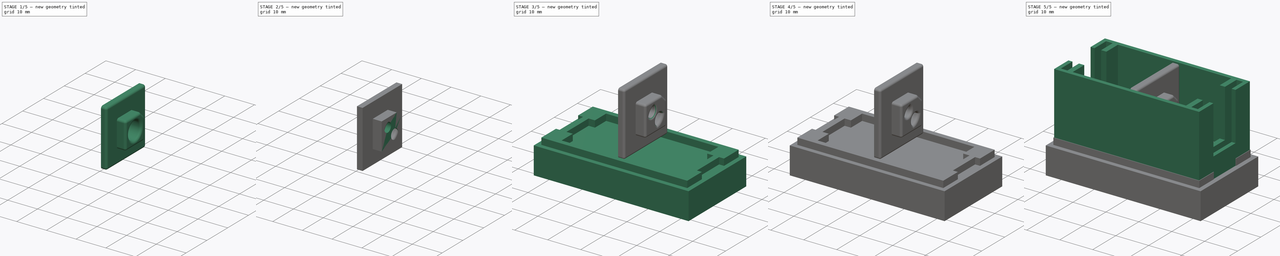
[diagram: build sequence overview — one tinted view per stage of 5, left to right]
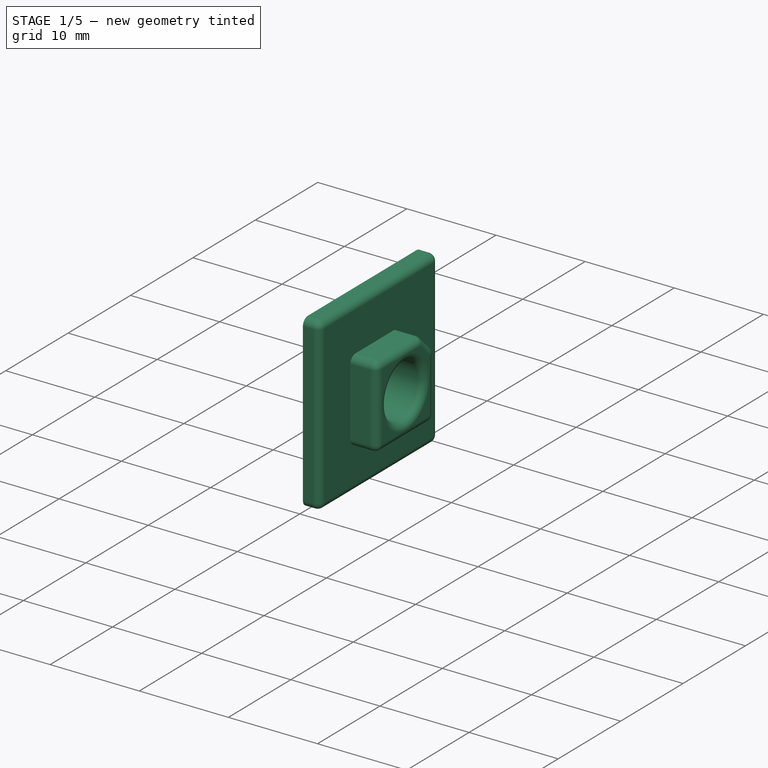
[diagram: stage 1 of 5 — iso view after this stage's code; geometry added in this stage tinted green]
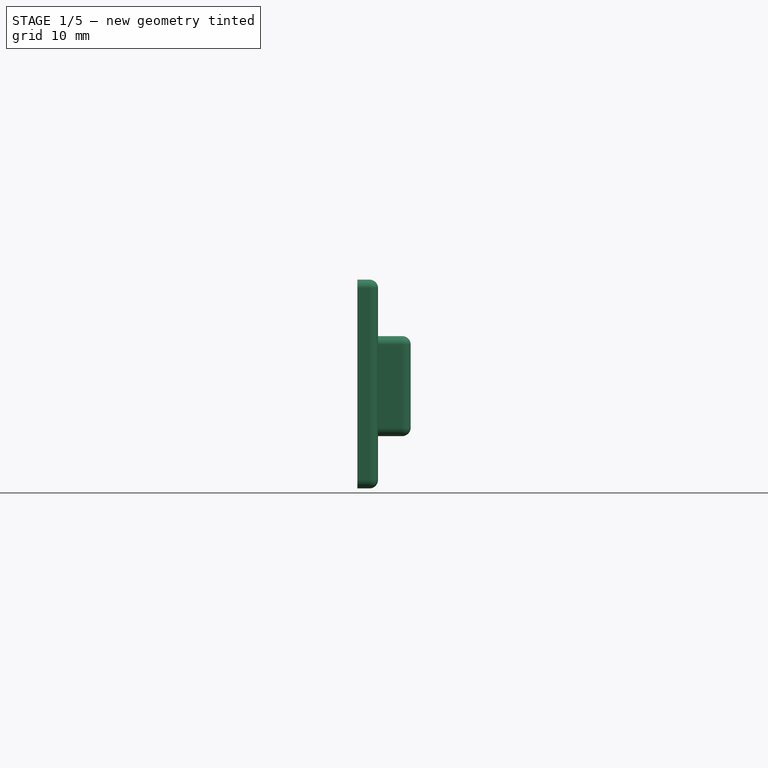
[diagram: stage 1 of 5 — front view after this stage's code; geometry added in this stage tinted green]
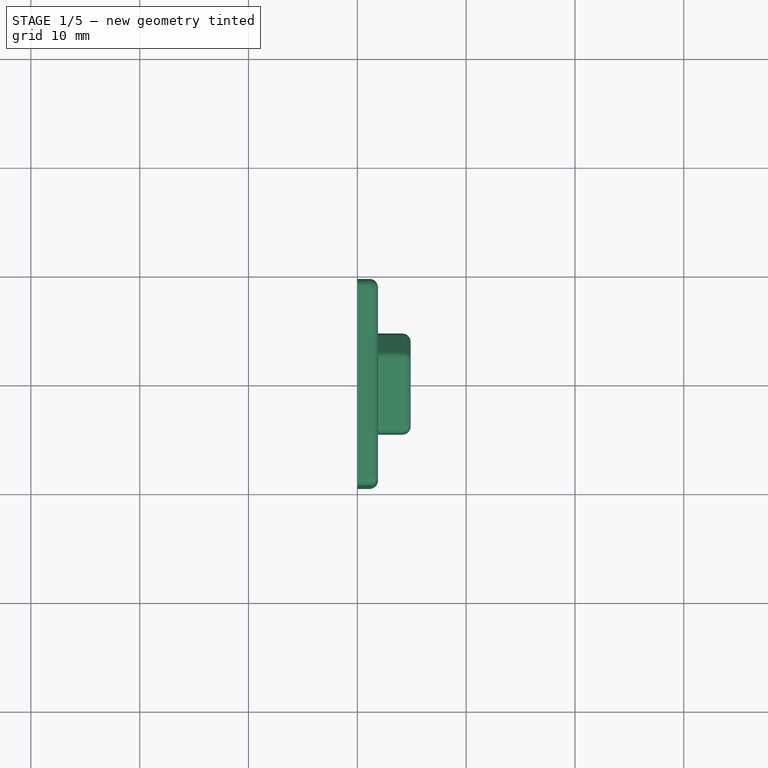
[diagram: stage 1 of 5 — top view after this stage's code; geometry added in this stage tinted green]
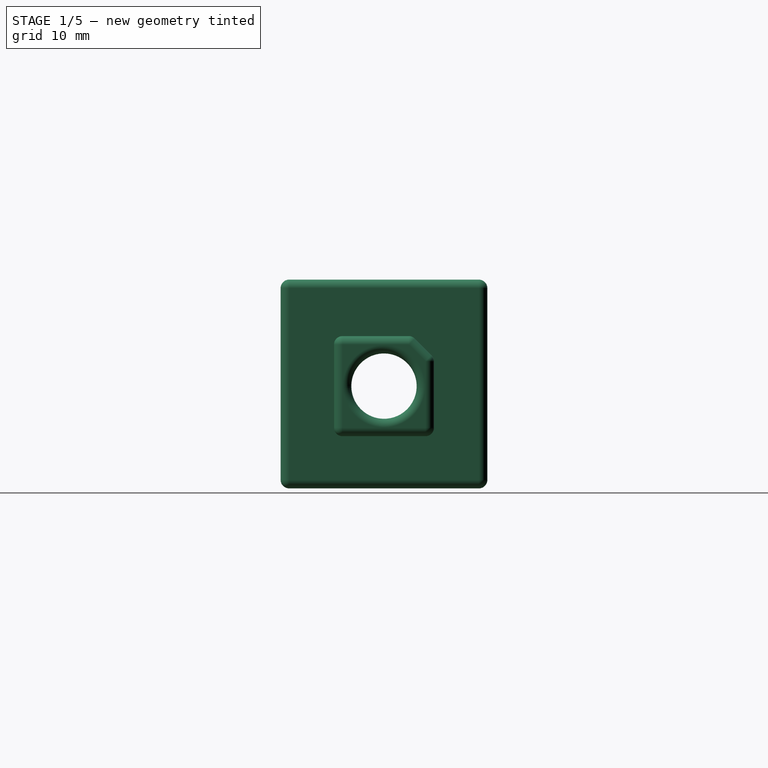
[diagram: stage 1 of 5 — right view after this stage's code; geometry added in this stage tinted green]
FCSTD DOCUMENT  (FreeCAD 0.18.4R)
Label: FloodlightConnectorBox
License: All rights reserved
LicenseURL: http://en.wikipedia.org/wiki/All_rights_reserved
objects: Sketcher::SketchObject×13, PartDesign::Pad×11, PartDesign::ShapeBinder×6, PartDesign::Body×5, PartDesign::Fillet×3, PartDesign::Chamfer×3, PartDesign::Pocket×1, Spreadsheet::Sheet×1
note: 54 computed .brp shape members not serialized (recipe doc carries the construction recipe); baked Part::Feature solids carry a one-line shape summary decoded from their .brp

FEATURE [PartDesign::Body] Body001  label="Cap"
  Group = -> [ShapeBinder,ShapeBinder001,Sketch003,Pad002,Sketch004,Pad003,Sketch005,Pad004,Sketch006,Pad005,Fillet,Chamfer]
  Origin = -> Origin001
  Placement = pos=(0,0,24) rot=(0,0,1;0rad)
  Tip = -> Chamfer
  expr: Placement.Base.z = Spreadsheet.BaseThickness + Spreadsheet.WallHeight + Spreadsheet.TopIsolationThickness + Spreadsheet.BaseThickness
FEATURE [Spreadsheet::Sheet] Spreadsheet
  cells = B3=Width; C3(Width)==22mm; B4=Length; C4(Length)==44mm; B5=WallThickness; C5(WallThickness)==1.2mm; B6=WallHeight; C6(WallHeight)==2 * IsolationOverlap + Width - 2 * (WallThickness + IsolationOverlap); B7=InnerWallThickness; C7(InnerWallThickness)==1.6mm; B8=IsolationThickness; C8(IsolationThickness)==2mm; B9=IsolationOverlap; C9(IsolationOverlap)==5mm; B10=BaseThickness; C10(BaseThickness)==1.2mm; B11=WallTolerance; C11(WallTolerance)==0.16mm; B12=CapWallTolerance; C12(CapWallTolerance)==0.3mm; B13=TightTolerance; C13(TightTolerance)==0.06mm; B14=IsolationSurfaceTolarance; C14(IsolationTolarance)==0.05mm; B15=IsolationSideTolarance; C15(IsolationSideTolarance)==0.3mm; B16=IsolationBumpTolerance; C16(IsolationBumpTolerance)==0.2mm; B17=IsolationTopTolerance; C17(IsolationTopTolerance)==0.01mm; B18=IsolationBottomTolerance; C18(IsolationBottomTolerance)==0.4mm; B19=TopIsolationThickness; C19(TopIsolationThickness)==2mm
FEATURE [Sketcher::SketchObject] Sketch007
  MapMode = 5
  Placement = pos=(0,0,0) rot=(0.57735,0.57735,0.57735;2.0944rad)
  Support = -> [YZ_Plane002]
  expr: Constraints[80] = Spreadsheet.IsolationTopTolerance
  expr: Constraints[53] = Spreadsheet.IsolationOverlap
  expr: Constraints[22] = Spreadsheet.WallHeight
  expr: Constraints[75] = Spreadsheet.IsolationBumpTolerance
  expr: Constraints[36] = Spreadsheet.IsolationSideTolarance
  expr: Constraints[29] = Spreadsheet.BaseThickness
  expr: Constraints[21] = <<Base.Cavity>>.Constraints.InnerWidth
  expr: Constraints[35] = Spreadsheet.IsolationBottomTolerance
  sketch-geometry (28):
    g0: LineSegment StartX=-9.5 StartY=1.6 StartZ=0 EndX=9.5 EndY=1.6 EndZ=0
    g1: LineSegment StartX=9.5 StartY=1.6 StartZ=0 EndX=9.5 EndY=20.79 EndZ=0
    g2: LineSegment StartX=9.5 StartY=20.79 StartZ=0 EndX=-9.5 EndY=20.79 EndZ=0
    g3: LineSegment StartX=-9.5 StartY=20.79 StartZ=0 EndX=-9.5 EndY=1.6 EndZ=0
    g4: LineSegment [constr] StartX=-4.8 StartY=15.8 StartZ=0 EndX=4.8 EndY=15.8 EndZ=0
    g5: LineSegment [constr] StartX=4.8 StartY=15.8 StartZ=0 EndX=4.8 EndY=6.2 EndZ=0
    g6: LineSegment [constr] StartX=4.8 StartY=6.2 StartZ=0 EndX=-4.8 EndY=6.2 EndZ=0
    g7: LineSegment [constr] StartX=-4.8 StartY=6.2 StartZ=0 EndX=-4.8 EndY=15.8 EndZ=0
    g8: LineSegment [constr] StartX=-9.8 StartY=1.2 StartZ=0 EndX=9.8 EndY=1.2 EndZ=0
    g9: LineSegment [constr] StartX=9.8 StartY=1.2 StartZ=0 EndX=9.8 EndY=20.8 EndZ=0
    g10: LineSegment [constr] StartX=9.8 StartY=20.8 StartZ=0 EndX=-9.8 EndY=20.8 EndZ=0
    g11: LineSegment [constr] StartX=-9.8 StartY=20.8 StartZ=0 EndX=-9.8 EndY=1.2 EndZ=0
    g12: LineSegment [constr] StartX=-9.5 StartY=1.6 StartZ=0 EndX=-9.8 EndY=1.6 EndZ=0
    g13: LineSegment [constr] StartX=9.5 StartY=1.6 StartZ=0 EndX=9.8 EndY=1.6 EndZ=0
    g14: LineSegment [constr] StartX=-9.5 StartY=1.6 StartZ=0 EndX=-9.5 EndY=1.2 EndZ=0
    g15: LineSegment [constr] StartX=-4.8 StartY=6.2 StartZ=0 EndX=-9.8 EndY=6.2 EndZ=0
    g16: LineSegment [constr] StartX=-4.8 StartY=6.2 StartZ=0 EndX=-4.8 EndY=1.2 EndZ=0
    g17: LineSegment [constr] StartX=4.8 StartY=15.8 StartZ=0 EndX=4.8 EndY=20.8 EndZ=0
    g18: LineSegment [constr] StartX=4.8 StartY=15.8 StartZ=0 EndX=9.8 EndY=15.8 EndZ=0
    g19: LineSegment [constr] StartX=-4.8 StartY=11 StartZ=0 EndX=4.8 EndY=11 EndZ=0
    g20: LineSegment [constr] StartX=-2e-16 StartY=15.8 StartZ=0 EndX=-2e-16 EndY=6.2 EndZ=0
    g21: LineSegment StartX=-4.6 StartY=15.6 StartZ=0 EndX=4.6 EndY=15.6 EndZ=0
    g22: LineSegment StartX=4.6 StartY=15.6 StartZ=0 EndX=4.6 EndY=6.4 EndZ=0
    g23: LineSegment StartX=4.6 StartY=6.4 StartZ=0 EndX=-4.6 EndY=6.4 EndZ=0
    g24: LineSegment StartX=-4.6 StartY=6.4 StartZ=0 EndX=-4.6 EndY=15.6 EndZ=0
    g25: LineSegment [constr] StartX=-4.6 StartY=15.6 StartZ=0 EndX=-4.8 EndY=15.6 EndZ=0
    g26: LineSegment [constr] StartX=-4.6 StartY=15.6 StartZ=0 EndX=-4.6 EndY=15.8 EndZ=0
    g27: LineSegment [constr] StartX=9.5 StartY=20.79 StartZ=0 EndX=9.5 EndY=20.8 EndZ=0
  constraints (81):
    c: Coincident(g0,g1)
    c: Coincident(g2,g3)
    c: Coincident(g3,g0)
    c: Horizontal(g2)
    c: Vertical(g1)
    c: Vertical(g3)
    c: Coincident(g4,g5)
    c: Coincident(g5,g6)
    c: Coincident(g6,g7)
    c: Coincident(g7,g4)
    c: Horizontal(g6)
    c: Vertical(g5)
    c: Vertical(g7)
    c: Coincident(g8,g9)
    c: Coincident(g9,g10)
    c: Coincident(g10,g11)
    c: Coincident(g11,g8)
    c: Horizontal(g10)
    c: Vertical(g9)
    c: Vertical(g11)
    c: Symmetric(g8,g8,g-2)
    c: DistanceX(g8,g8) = 19.6
    c: DistanceY(g11,g11) = 19.6
    c: Coincident(g12,g0)
    c: PointOnObject(g12,g11)
    c: Horizontal(g12)
    c: Coincident(g13,g0)
    c: PointOnObject(g13,g9)
    c: Horizontal(g13)
    c: DistanceY(g-1,g8) = 1.2
    c: Coincident(g14,g0)
    c: PointOnObject(g14,g8)
    c: Vertical(g14)
    c: Equal(g12,g13)
    c: Horizontal(g0)
    c: DistanceY(g8,g12) = 0.4
    c: DistanceX(g8,g14) = 0.3
    c: Coincident(g15,g6)
    c: PointOnObject(g15,g11)
    c: Horizontal(g15)
    c: Coincident(g16,g6)
    c: PointOnObject(g16,g8)
    c: Vertical(g16)
    c: Coincident(g17,g4)
    c: PointOnObject(g17,g10)
    c: Vertical(g17)
    c: Coincident(g18,g4)
    c: PointOnObject(g18,g9)
    c: Horizontal(g18)
    c: Horizontal(g4)
    c: Equal(g18,g17)
    c: Equal(g17,g15)
    c: Equal(g15,g16)
    c: DistanceY(g18,g9) = 5
    c: PointOnObject(g19,g7)
    c: PointOnObject(g19,g5)
    c: PointOnObject(g20,g4)
    c: PointOnObject(g20,g6)
    c: Symmetric(g4,g4,g20)
    c: Symmetric(g6,g4,g19)
    c: Coincident(g21,g22)
    c: Coincident(g22,g23)
    c: Coincident(g23,g24)
    c: Coincident(g24,g21)
    c: Horizontal(g21)
    c: Vertical(g24)
    c: Symmetric(g22,g23,g20)
    c: Symmetric(g22,g21,g19)
    c: Coincident(g25,g21)
    c: PointOnObject(g25,g7)
    c: Horizontal(g25)
    c: Coincident(g26,g21)
    c: PointOnObject(g26,g4)
    c: Vertical(g26)
    c: Equal(g25,g26)
    c: DistanceX(g4,g26) = 0.2
    c: Coincident(g27,g1)
    c: PointOnObject(g27,g10)
    c: Vertical(g27)
    c: Coincident(g2,g1)
    c: DistanceY(g1,g9) = 0.01
FEATURE [Sketcher::SketchObject] Sketch008
  ExternalGeometry = -> [Sketch007]
  MapMode = 5
  Placement = pos=(0,0,0) rot=(0.57735,0.57735,0.57735;2.0944rad)
  Support = -> [YZ_Plane002]
  sketch-geometry (5):
    g0: LineSegment StartX=-9.5 StartY=20.79 StartZ=0 EndX=9.5 EndY=20.79 EndZ=0
    g1: LineSegment StartX=9.5 StartY=20.79 StartZ=0 EndX=9.5 EndY=1.6 EndZ=0
    g2: LineSegment StartX=9.5 StartY=1.6 StartZ=0 EndX=-9.5 EndY=1.6 EndZ=0
    g3: LineSegment StartX=-9.5 StartY=1.6 StartZ=0 EndX=-9.5 EndY=20.79 EndZ=0
    g4: Circle CenterX=2e-16 CenterY=11 CenterZ=0 NormalX=0 NormalY=0 NormalZ=1 AngleXU=0 Radius=3
  constraints (10):
    c: Coincident(g2,g3)
    c: Coincident(g0,g3)
    c: Coincident(g1,g2)
    c: Coincident(g0,g1)
    c: Coincident(g1,g-4)
    c: Coincident(g2,g-4)
    c: Coincident(g0,g-3)
    c: Coincident(g0,g-3)
    c: Symmetric(g-6,g-5,g4)
    c: Radius(g4) = 3
FEATURE [PartDesign::Pad] Pad006
  Length = 1.9
  Length2 = 100
  Placement = pos=(0,0,0) rot=(0.57735,0.57735,0.57735;2.0944rad)
  Profile = -> Sketch008
  Type = 0
  expr: Length = Spreadsheet.IsolationThickness - Spreadsheet.IsolationSurfaceTolarance * 2
FEATURE [Sketcher::SketchObject] Sketch009
  AttachmentOffset = pos=(0,0,1.9) rot=(0,0,1;0rad)
  ExternalGeometry = -> [Sketch008,Sketch007]
  MapMode = 5
  Placement = pos=(1.9,-4e-16,4e-16) rot=(0.57735,0.57735,0.57735;2.0944rad)
  Support = -> [YZ_Plane002]
  expr: AttachmentOffset.Base.z = Pad006.Length
  sketch-geometry (5):
    g0: LineSegment StartX=-4.6 StartY=15.6 StartZ=0 EndX=4.6 EndY=15.6 EndZ=0
    g1: LineSegment StartX=4.6 StartY=15.6 StartZ=0 EndX=4.6 EndY=6.4 EndZ=0
    g2: LineSegment StartX=4.6 StartY=6.4 StartZ=0 EndX=-4.6 EndY=6.4 EndZ=0
    g3: LineSegment StartX=-4.6 StartY=6.4 StartZ=0 EndX=-4.6 EndY=15.6 EndZ=0
    g4: Circle CenterX=0 CenterY=11 CenterZ=0 NormalX=0 NormalY=0 NormalZ=1 AngleXU=0 Radius=3
  constraints (10):
    c: Coincident(g2,g3)
    c: Coincident(g0,g3)
    c: Coincident(g1,g2)
    c: Coincident(g0,g1)
    c: Coincident(g2,g-5)
    c: Coincident(g0,g-4)
    c: Coincident(g0,g-4)
    c: Coincident(g1,g-5)
    c: Coincident(g4,g-3)
    c: Equal(g4,g-3)
FEATURE [PartDesign::Pad] Pad007
  BaseFeature = -> Pad006
  Length = 3
  Length2 = 100
  Placement = pos=(0,0,0) rot=(0.57735,0.57735,0.57735;2.0944rad)
  Profile = -> Sketch009
  Refine = true
  Type = 0
FEATURE [PartDesign::Body] Body003  label="EndIsolation_2"
  Group = -> [ShapeBinder002,Sketch010,Pad008,Sketch011,Pad009,Chamfer003,Fillet001]
  Origin = -> Origin003
  Placement = pos=(-18.85,0,0) rot=(0,0,1;3.14159rad)
  Tip = -> Fillet001
FEATURE [PartDesign::Chamfer] Chamfer004
  Base = -> Pad007 [Edge19]
  BaseFeature = -> Pad007
  Placement = pos=(0,0,0) rot=(0.57735,0.57735,0.57735;2.0944rad)
  Size = 2
FEATURE [PartDesign::Fillet] Fillet002
  Base = -> Chamfer004 [Face11,Edge11,Edge15,Edge23,Edge7,Edge20,Edge6,Edge8,Edge9,Edge13,Edge10,Edge17,Edge25,Edge21,Edge29]
  BaseFeature = -> Chamfer004
  Placement = pos=(0,0,0) rot=(0.57735,0.57735,0.57735;2.0944rad)
  Radius = 0.79
FEATURE [PartDesign::Body] Body002  label="EndIsolation_1"
  Group = -> [Sketch007,Sketch008,Pad006,Sketch009,Pad007,Chamfer004,Fillet002]
  Origin = -> Origin002
  Placement = pos=(18.85,0,0) rot=(0,0,1;0rad)
  Tip = -> Fillet002
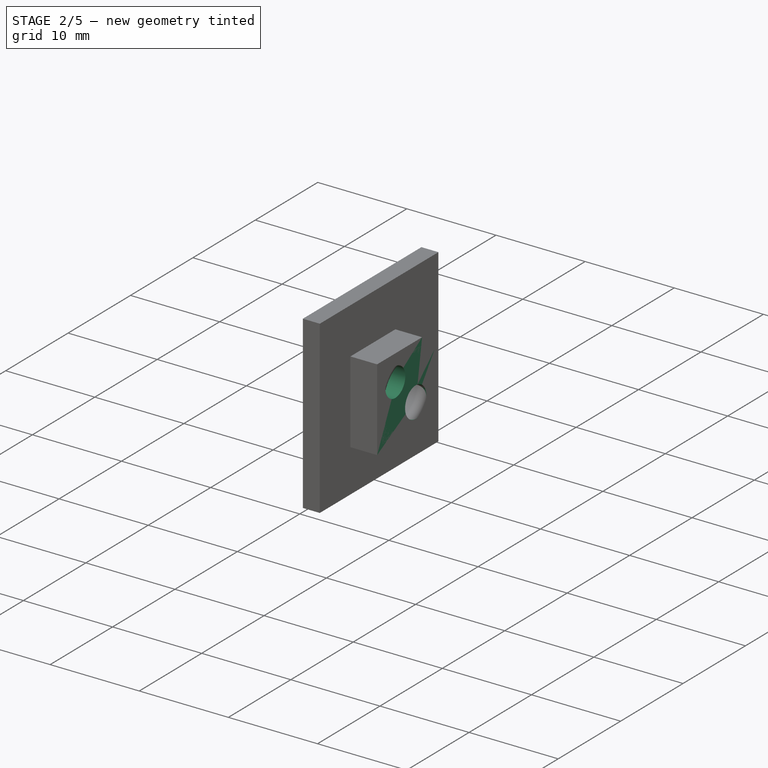
[diagram: stage 2 of 5 — iso view after this stage's code; geometry added in this stage tinted green]
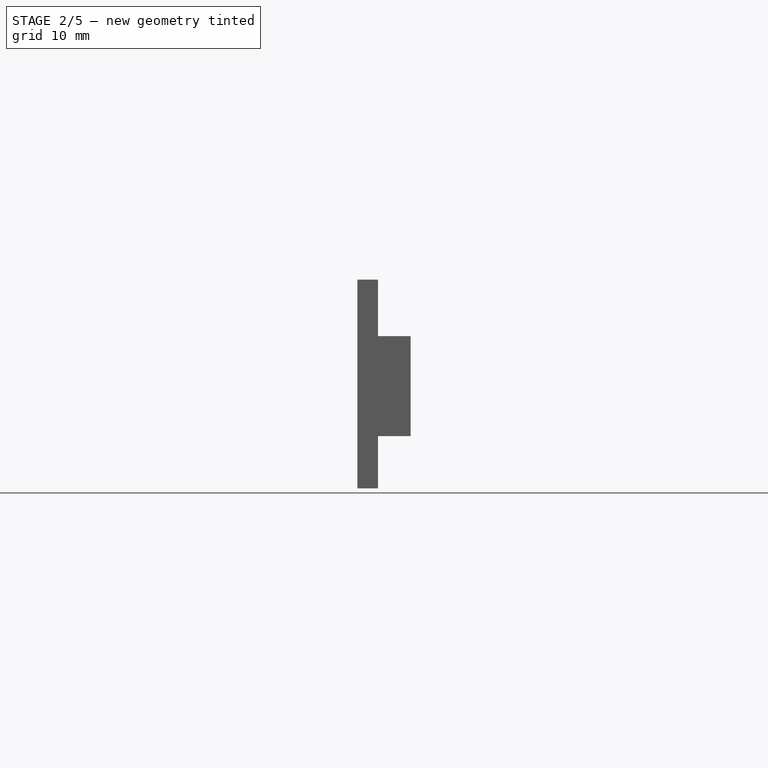
[diagram: stage 2 of 5 — front view after this stage's code; geometry added in this stage tinted green]
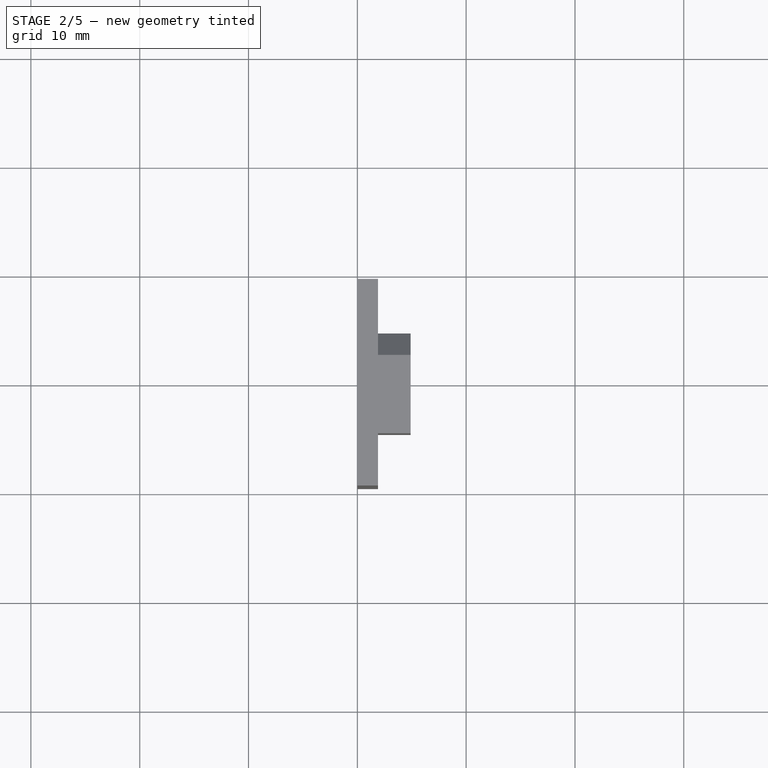
[diagram: stage 2 of 5 — top view after this stage's code; geometry added in this stage tinted green]
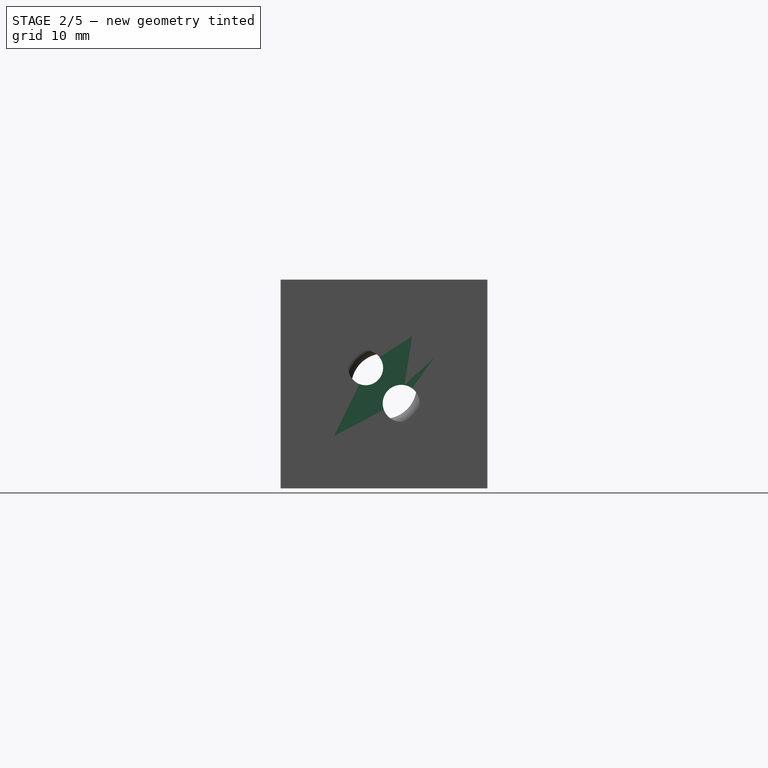
[diagram: stage 2 of 5 — right view after this stage's code; geometry added in this stage tinted green]
FEATURE [PartDesign::ShapeBinder] ShapeBinder002
  Placement = pos=(0,0,0) rot=(0.57735,0.57735,0.57735;2.0944rad)
  Support = -> [Sketch007]
  TraceSupport = false
FEATURE [Sketcher::SketchObject] Sketch010
  ExternalGeometry = -> [ShapeBinder002]
  MapMode = 5
  Placement = pos=(0,0,0) rot=(0.57735,0.57735,0.57735;2.0944rad)
  Support = -> [YZ_Plane003]
  sketch-geometry (11):
    g0: LineSegment StartX=-9.5 StartY=20.79 StartZ=0 EndX=9.5 EndY=20.79 EndZ=0
    g1: LineSegment StartX=9.5 StartY=20.79 StartZ=0 EndX=9.5 EndY=1.6 EndZ=0
    g2: LineSegment StartX=9.5 StartY=1.6 StartZ=0 EndX=-9.5 EndY=1.6 EndZ=0
    g3: LineSegment StartX=-9.5 StartY=1.6 StartZ=0 EndX=-9.5 EndY=20.79 EndZ=0
    g4: Circle CenterX=-1.68252 CenterY=12.6825 CenterZ=0 NormalX=0 NormalY=0 NormalZ=1 AngleXU=0 Radius=1.6
    g5: Circle CenterX=1.58252 CenterY=9.41748 CenterZ=0 NormalX=0 NormalY=0 NormalZ=1 AngleXU=0 Radius=1.7
    g6: LineSegment [constr] StartX=0.380443 StartY=10.6196 StartZ=0 EndX=-0.551153 EndY=11.5512 EndZ=0
    g7: LineSegment [constr] StartX=-1.68252 StartY=14.2825 StartZ=0 EndX=-1.68252 EndY=15.6 EndZ=0
    g8: LineSegment [constr] StartX=-3.28252 StartY=12.6825 StartZ=0 EndX=-4.6 EndY=12.6825 EndZ=0
    g9: LineSegment [constr] StartX=1.58252 StartY=7.71748 StartZ=0 EndX=1.58252 EndY=6.4 EndZ=0
    g10: LineSegment [constr] StartX=3.28252 StartY=9.41748 StartZ=0 EndX=4.6 EndY=9.41748 EndZ=0
  constraints (34):
    c: Coincident(g2,g3)
    c: Coincident(g0,g3)
    c: Coincident(g1,g2)
    c: Coincident(g0,g1)
    c: Coincident(g0,g-3)
    c: Coincident(g0,g-3)
    c: Coincident(g1,g-4)
    c: Coincident(g2,g-4)
    c: PointOnObject(g8,g-8)
    c: PointOnObject(g7,g-7)
    c: PointOnObject(g10,g-6)
    c: PointOnObject(g9,g-5)
    c: PointOnObject(g6,g5)
    c: PointOnObject(g6,g4)
    c: PointOnObject(g4,g6)
    c: PointOnObject(g5,g6)
    c: Equal(g8,g7)
    c: Equal(g7,g6)
    c: Equal(g6,g10)
    c: Equal(g10,g9)
    c: Radius(g5) = 1.7
    c: PointOnObject(g7,g4)
    c: Vertical(g7)
    c: PointOnObject(g8,g4)
    c: Horizontal(g8)
    c: Vertical(g9)
    c: Horizontal(g10)
    c: PointOnObject(g10,g5)
    c: PointOnObject(g9,g5)
    c: Radius(g4) = 1.6
    c: PointOnObject(g5,g9)
    c: PointOnObject(g5,g10)
    c: PointOnObject(g4,g8)
    c: PointOnObject(g4,g7)
FEATURE [PartDesign::Pad] Pad008
  Length = 1.9
  Length2 = 100
  Placement = pos=(0,0,0) rot=(0.57735,0.57735,0.57735;2.0944rad)
  Profile = -> Sketch010
  Type = 0
  expr: Length = Pad006.Length
FEATURE [Sketcher::SketchObject] Sketch011
  AttachmentOffset = pos=(0,0,1.9) rot=(0,0,1;0rad)
  ExternalGeometry = -> [Sketch010,ShapeBinder002]
  MapMode = 5
  Placement = pos=(1.9,-4e-16,4e-16) rot=(0.57735,0.57735,0.57735;2.0944rad)
  Support = -> [YZ_Plane003]
  expr: AttachmentOffset.Base.z = Pad008.Length
  sketch-geometry (6):
    g0: LineSegment StartX=-4.6 StartY=15.6 StartZ=0 EndX=4.6 EndY=15.6 EndZ=0
    g1: LineSegment StartX=4.6 StartY=15.6 StartZ=0 EndX=4.6 EndY=6.4 EndZ=0
    g2: LineSegment StartX=4.6 StartY=6.4 StartZ=0 EndX=-4.6 EndY=6.4 EndZ=0
    g3: LineSegment StartX=-4.6 StartY=6.4 StartZ=0 EndX=-4.6 EndY=15.6 EndZ=0
    g4: Circle CenterX=-1.68252 CenterY=12.6825 CenterZ=0 NormalX=0 NormalY=0 NormalZ=1 AngleXU=0 Radius=1.6
    g5: Circle CenterX=1.58252 CenterY=9.41748 CenterZ=0 NormalX=0 NormalY=0 NormalZ=1 AngleXU=0 Radius=1.7
  constraints (12):
    c: Coincident(g2,g3)
    c: Coincident(g0,g3)
    c: Coincident(g1,g2)
    c: Coincident(g0,g1)
    c: Coincident(g0,g-5)
    c: Coincident(g0,g-5)
    c: Coincident(g1,g-6)
    c: Coincident(g2,g-6)
    c: Coincident(g4,g-3)
    c: Coincident(g5,g-4)
    c: Equal(g5,g-4)
    c: Equal(g4,g-3)
FEATURE [PartDesign::Pad] Pad009
  BaseFeature = -> Pad008
  Length = 3
  Length2 = 100
  Placement = pos=(0,0,0) rot=(0.57735,0.57735,0.57735;2.0944rad)
  Profile = -> Sketch011
  Refine = true
  Type = 0
  expr: Length = Pad007.Length
FEATURE [PartDesign::Body] Body004  label="TopIsolation"
  Group = -> [ShapeBinder003,ShapeBinder004,ShapeBinder005,Sketch012,Pad010]
  Origin = -> Origin004
  Placement = pos=(0,0,20.8) rot=(0,0,1;0rad)
  Tip = -> Pad010
FEATURE [PartDesign::Chamfer] Chamfer003
  Base = -> Pad009 [Edge20]
  BaseFeature = -> Pad009
  Placement = pos=(0,0,0) rot=(0.57735,0.57735,0.57735;2.0944rad)
  Size = 2
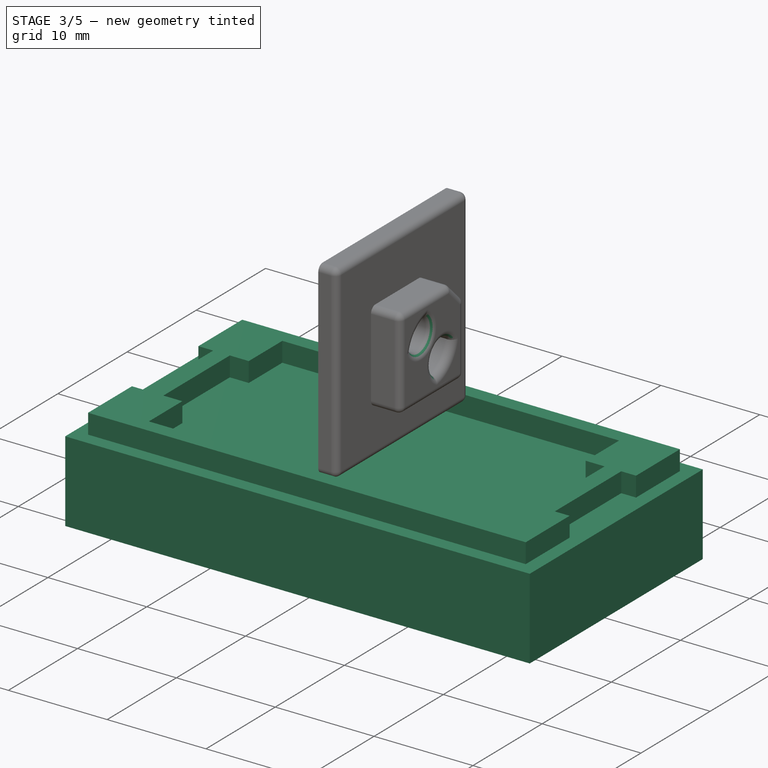
[diagram: stage 3 of 5 — iso view after this stage's code; geometry added in this stage tinted green]
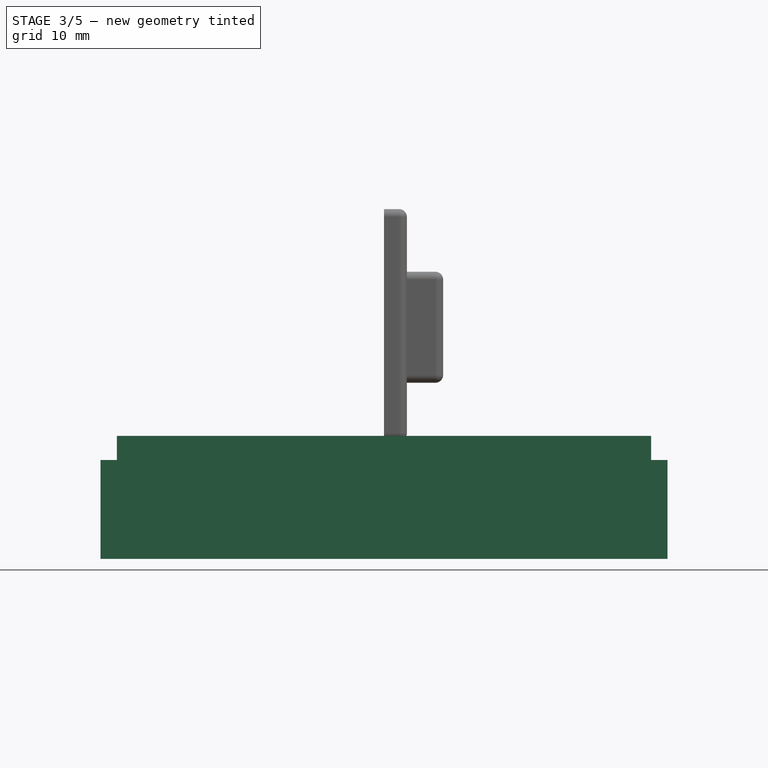
[diagram: stage 3 of 5 — front view after this stage's code; geometry added in this stage tinted green]
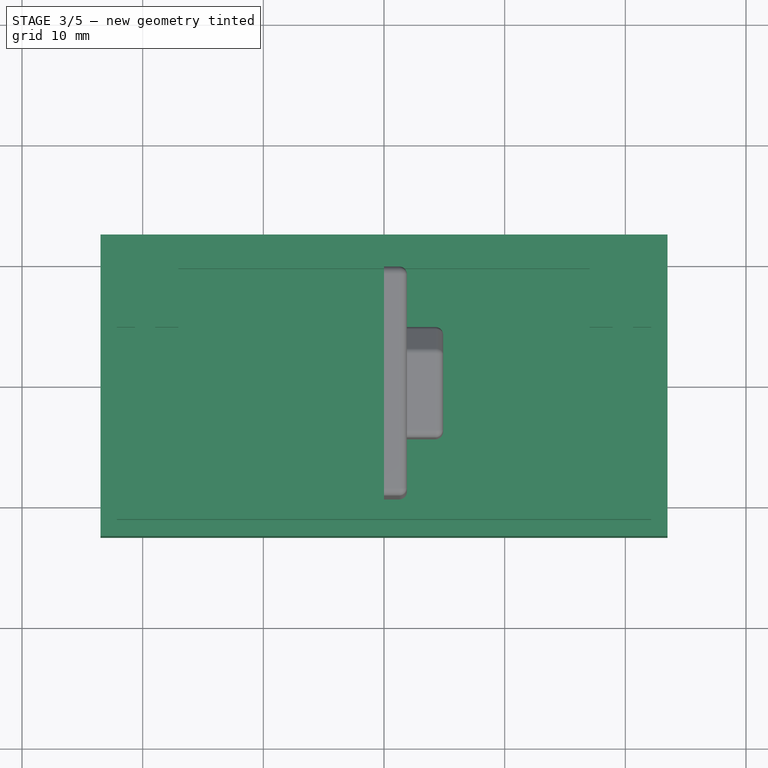
[diagram: stage 3 of 5 — top view after this stage's code; geometry added in this stage tinted green]
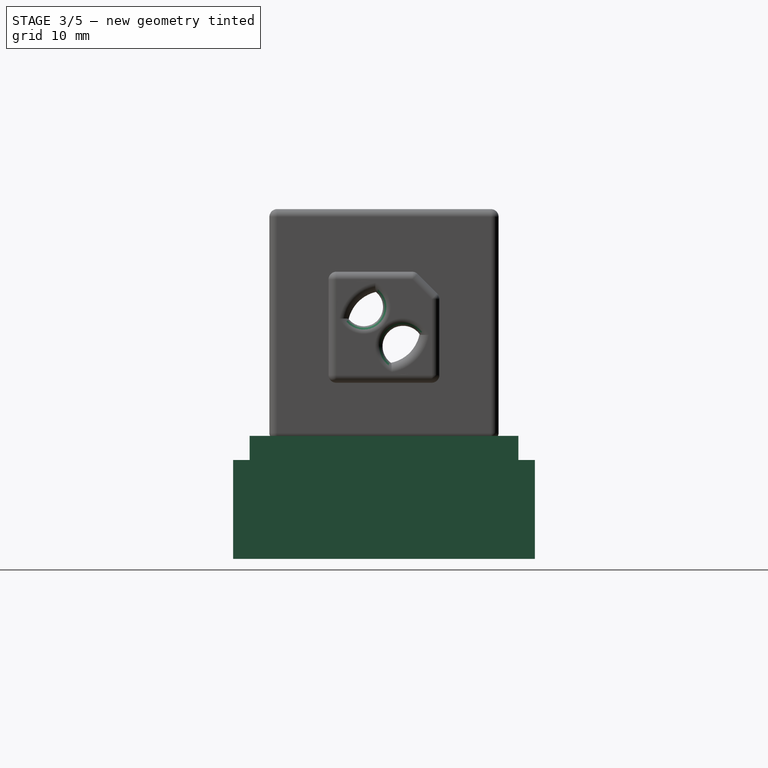
[diagram: stage 3 of 5 — right view after this stage's code; geometry added in this stage tinted green]
FEATURE [PartDesign::Body] Body  label="Base"
  Group = -> [Sketch,Pad,Sketch001,Pocket,Sketch002,Pad001]
  Origin = -> Origin
  Tip = -> Pad001
FEATURE [PartDesign::ShapeBinder] ShapeBinder
  Support = -> [Sketch]
  TraceSupport = false
FEATURE [PartDesign::ShapeBinder] ShapeBinder001
  Placement = pos=(0,0,1.2) rot=(0,0,1;0rad)
  Support = -> [Sketch001]
  TraceSupport = false
FEATURE [Sketcher::SketchObject] Sketch003
  ExternalGeometry = -> [ShapeBinder]
  MapMode = 5
  Support = -> [XY_Plane001]
  expr: Constraints[23] = Spreadsheet.WallThickness + Spreadsheet.CapWallTolerance
  sketch-geometry (8):
    g0: LineSegment StartX=-23.5 StartY=12.5 StartZ=0 EndX=23.5 EndY=12.5 EndZ=0
    g1: LineSegment StartX=23.5 StartY=12.5 StartZ=0 EndX=23.5 EndY=-12.5 EndZ=0
    g2: LineSegment StartX=23.5 StartY=-12.5 StartZ=0 EndX=-23.5 EndY=-12.5 EndZ=0
    g3: LineSegment StartX=-23.5 StartY=-12.5 StartZ=0 EndX=-23.5 EndY=12.5 EndZ=0
    g4: LineSegment [constr] StartX=-22 StartY=11 StartZ=0 EndX=-23.5 EndY=11 EndZ=0
    g5: LineSegment [constr] StartX=-22 StartY=11 StartZ=0 EndX=-22 EndY=12.5 EndZ=0
    g6: LineSegment [constr] StartX=22 StartY=-11 StartZ=0 EndX=23.5 EndY=-11 EndZ=0
    g7: LineSegment [constr] StartX=22 StartY=-11 StartZ=0 EndX=22 EndY=-12.5 EndZ=0
  constraints (24):
    c: Coincident(g0,g1)
    c: Coincident(g1,g2)
    c: Coincident(g2,g3)
    c: Coincident(g3,g0)
    c: Horizontal(g0)
    c: Horizontal(g2)
    c: Vertical(g1)
    c: Vertical(g3)
    c: Coincident(g4,g-3)
    c: Horizontal(g4)
    c: PointOnObject(g4,g3)
    c: Coincident(g5,g4)
    c: PointOnObject(g5,g0)
    c: Vertical(g5)
    c: Coincident(g6,g-4)
    c: PointOnObject(g6,g1)
    c: Horizontal(g6)
    c: Coincident(g7,g6)
    c: PointOnObject(g7,g2)
    c: Vertical(g7)
    c: Equal(g4,g5)
    c: Equal(g5,g6)
    c: Equal(g6,g7)
    c: DistanceY(g4,g0) = 1.5
FEATURE [PartDesign::Pad] Pad002
  Length = 1.2
  Length2 = 100
  Profile = -> Sketch003
  Reversed = true
  Type = 0
  expr: Length = Spreadsheet.BaseThickness
FEATURE [Sketcher::SketchObject] Sketch004
  AttachmentOffset = pos=(0,0,-1.2) rot=(0,0,1;0rad)
  ExternalGeometry = -> [Sketch003,ShapeBinder001]
  MapMode = 5
  Placement = pos=(0,0,-1.2) rot=(0,0,1;0rad)
  Support = -> [XY_Plane001]
  expr: Constraints[48] = Spreadsheet.WallTolerance
  expr: AttachmentOffset.Base.z = -Spreadsheet.BaseThickness
  expr: Constraints[33] = Spreadsheet.WallThickness
  sketch-geometry (22):
    g0: LineSegment StartX=-23.5 StartY=12.5 StartZ=0 EndX=23.5 EndY=12.5 EndZ=0
    g1: LineSegment StartX=23.5 StartY=12.5 StartZ=0 EndX=23.5 EndY=-12.5 EndZ=0
    g2: LineSegment StartX=23.5 StartY=-12.5 StartZ=0 EndX=-23.5 EndY=-12.5 EndZ=0
    g3: LineSegment StartX=-23.5 StartY=-12.5 StartZ=0 EndX=-23.5 EndY=12.5 EndZ=0
    g4: LineSegment StartX=-22.3 StartY=11.3 StartZ=0 EndX=22.3 EndY=11.3 EndZ=0
    g5: LineSegment StartX=22.3 StartY=11.3 StartZ=0 EndX=22.3 EndY=4.64 EndZ=0
    g6: LineSegment StartX=22.3 StartY=-11.3 StartZ=0 EndX=-22.3 EndY=-11.3 EndZ=0
    g7: LineSegment StartX=-22.3 StartY=-11.3 StartZ=0 EndX=-22.3 EndY=-4.64 EndZ=0
    g8: LineSegment [constr] StartX=-22.3 StartY=11.3 StartZ=0 EndX=-23.5 EndY=11.3 EndZ=0
    g9: LineSegment [constr] StartX=-22.3 StartY=11.3 StartZ=0 EndX=-22.3 EndY=12.5 EndZ=0
    g10: LineSegment [constr] StartX=22.3 StartY=-11.3 StartZ=0 EndX=23.5 EndY=-11.3 EndZ=0
    g11: LineSegment [constr] StartX=22.3 StartY=-11.3 StartZ=0 EndX=22.3 EndY=-12.5 EndZ=0
    g12: LineSegment StartX=-22.3 StartY=4.64 StartZ=0 EndX=-20.8 EndY=4.64 EndZ=0
    g13: LineSegment StartX=-22.3 StartY=-4.64 StartZ=0 EndX=-20.8 EndY=-4.64 EndZ=0
    g14: LineSegment [constr] StartX=-20.8 StartY=4.64 StartZ=0 EndX=-20.8 EndY=4.8 EndZ=0
    g15: LineSegment [constr] StartX=-20.8 StartY=-4.8 StartZ=0 EndX=-20.8 EndY=-4.64 EndZ=0
    g16: LineSegment StartX=-20.8 StartY=4.64 StartZ=0 EndX=-20.8 EndY=-4.64 EndZ=0
    g17: LineSegment StartX=-22.3 StartY=4.64 StartZ=0 EndX=-22.3 EndY=11.3 EndZ=0
    g18: LineSegment StartX=22.3 StartY=4.64 StartZ=0 EndX=20.8 EndY=4.64 EndZ=0
    g19: LineSegment StartX=20.8 StartY=4.64 StartZ=0 EndX=20.8 EndY=-4.64 EndZ=0
    g20: LineSegment StartX=20.8 StartY=-4.64 StartZ=0 EndX=22.3 EndY=-4.64 EndZ=0
    g21: LineSegment StartX=22.3 StartY=-4.64 StartZ=0 EndX=22.3 EndY=-11.3 EndZ=0
  constraints (60):
    c: Coincident(g0,g1)
    c: Coincident(g1,g2)
    c: Coincident(g2,g3)
    c: Coincident(g3,g0)
    c: Horizontal(g0)
    c: Horizontal(g2)
    c: Vertical(g1)
    c: Vertical(g3)
    c: Coincident(g0,g-4)
    c: Coincident(g1,g-6)
    c: Coincident(g4,g5)
    c: Coincident(g21,g6)
    c: Coincident(g6,g7)
    c: Coincident(g17,g4)
    c: Horizontal(g4)
    c: Horizontal(g6)
    c: Vertical(g5)
    c: Vertical(g7)
    c: Coincident(g8,g4)
    c: PointOnObject(g8,g3)
    c: Horizontal(g8)
    c: Coincident(g9,g4)
    c: PointOnObject(g9,g0)
    c: Vertical(g9)
    c: Coincident(g10,g21)
    c: PointOnObject(g10,g1)
    c: Coincident(g11,g21)
    c: PointOnObject(g11,g2)
    c: Vertical(g11)
    c: Horizontal(g10)
    c: Equal(g8,g9)
    c: Equal(g9,g10)
    c: Equal(g10,g11)
    c: DistanceY(g8,g0) = 1.2
    c: Horizontal(g12)
    c: Horizontal(g13)
    c: Coincident(g14,g12)
    c: Coincident(g14,g-7)
    c: Vertical(g14)
    c: Coincident(g15,g-8)
    c: Coincident(g15,g13)
    c: Vertical(g15)
    c: Equal(g14,g15)
    c: Coincident(g16,g12)
    c: Coincident(g16,g13)
    c: Coincident(g7,g13)
    c: Coincident(g17,g12)
    c: Tangent(g7,g17)
    c: DistanceY(g-8,g7) = 0.16
    c: Horizontal(g18)
    c: Coincident(g18,g19)
    c: Vertical(g19)
    c: Coincident(g19,g20)
    c: Horizontal(g20)
    c: PointOnObject(g-9,g19)
    c: Coincident(g5,g18)
    c: Coincident(g21,g20)
    c: Tangent(g5,g21)
    c: PointOnObject(g18,g12)
    c: PointOnObject(g19,g13)
FEATURE [PartDesign::Pad] Pad003
  BaseFeature = -> Pad002
  Length = 7
  Length2 = 100
  Profile = -> Sketch004
  Refine = true
  Reversed = true
  Type = 0
  expr: Length = Spreadsheet.TopIsolationThickness + Spreadsheet.IsolationOverlap
FEATURE [PartDesign::ShapeBinder] ShapeBinder003
  Placement = pos=(0,0,-1.2) rot=(0,0,1;0rad)
  Support = -> [Sketch004]
  TraceSupport = false
FEATURE [PartDesign::ShapeBinder] ShapeBinder004
  Placement = pos=(0,0,-1.2) rot=(0,0,1;0rad)
  Support = -> [Sketch005]
  TraceSupport = false
FEATURE [PartDesign::ShapeBinder] ShapeBinder005
  Placement = pos=(0,0,1.2) rot=(0,0,1;0rad)
  Support = -> [Sketch001]
  TraceSupport = false
FEATURE [Sketcher::SketchObject] Sketch012
  ExternalGeometry = -> [ShapeBinder003,ShapeBinder005,ShapeBinder004]
  MapMode = 5
  Support = -> [XY_Plane004]
  expr: Constraints[55] = Spreadsheet.WallTolerance
  sketch-geometry (38):
    g0: LineSegment StartX=-22.14 StartY=11.14 StartZ=0 EndX=22.14 EndY=11.14 EndZ=0
    g1: LineSegment StartX=22.14 StartY=-11.14 StartZ=0 EndX=-22.14 EndY=-11.14 EndZ=0
    g2: LineSegment StartX=-22.14 StartY=11.14 StartZ=0 EndX=-22.14 EndY=4.8 EndZ=0
    g3: LineSegment StartX=-22.14 StartY=4.8 StartZ=0 EndX=-20.64 EndY=4.8 EndZ=0
    g4: LineSegment StartX=-20.64 StartY=4.8 StartZ=0 EndX=-20.64 EndY=-4.8 EndZ=0
    g5: LineSegment StartX=-20.64 StartY=-4.8 StartZ=0 EndX=-22.14 EndY=-4.8 EndZ=0
    g6: LineSegment StartX=-22.14 StartY=-4.8 StartZ=0 EndX=-22.14 EndY=-11.14 EndZ=0
    g7: LineSegment StartX=22.14 StartY=11.14 StartZ=0 EndX=22.14 EndY=4.8 EndZ=0
    g8: LineSegment StartX=22.14 StartY=4.8 StartZ=0 EndX=20.64 EndY=4.8 EndZ=0
    g9: LineSegment StartX=20.64 StartY=4.8 StartZ=0 EndX=20.64 EndY=-4.8 EndZ=0
    g10: LineSegment StartX=20.64 StartY=-4.8 StartZ=0 EndX=22.14 EndY=-4.8 EndZ=0
    g11: LineSegment StartX=22.14 StartY=-4.8 StartZ=0 EndX=22.14 EndY=-11.14 EndZ=0
    g12: LineSegment [constr] StartX=-22.3 StartY=11.14 StartZ=0 EndX=-22.14 EndY=11.14 EndZ=0
    g13: LineSegment [constr] StartX=-22.14 StartY=11.14 StartZ=0 EndX=-22.14 EndY=11.3 EndZ=0
    g14: LineSegment [constr] StartX=22.3 StartY=-11.14 StartZ=0 EndX=22.14 EndY=-11.14 EndZ=0
    g15: LineSegment [constr] StartX=22.14 StartY=-11.14 StartZ=0 EndX=22.14 EndY=-11.3 EndZ=0
    g16: LineSegment [constr] StartX=-22.14 StartY=4.8 StartZ=0 EndX=-22.14 EndY=4.64 EndZ=0
    g17: LineSegment [constr] StartX=-22.14 StartY=-4.8 StartZ=0 EndX=-22.14 EndY=-4.64 EndZ=0
    g18: LineSegment [constr] StartX=20.8 StartY=4.64 StartZ=0 EndX=20.64 EndY=4.64 EndZ=0
    g19: LineSegment [constr] StartX=-20.8 StartY=4.64 StartZ=0 EndX=-20.64 EndY=4.64 EndZ=0
    g20: LineSegment StartX=-17.04 StartY=9.64 StartZ=0 EndX=-17.04 EndY=4.8 EndZ=0
    g21: LineSegment StartX=-17.04 StartY=4.8 StartZ=0 EndX=-18.96 EndY=4.8 EndZ=0
    g22: LineSegment StartX=-18.96 StartY=4.8 StartZ=0 EndX=-18.96 EndY=-4.8 EndZ=0
    g23: LineSegment StartX=-18.96 StartY=-4.8 StartZ=0 EndX=-17.04 EndY=-4.8 EndZ=0
    g24: LineSegment StartX=-17.04 StartY=-4.8 StartZ=0 EndX=-17.04 EndY=-9.64 EndZ=0
    g25: LineSegment StartX=-17.04 StartY=-9.64 StartZ=0 EndX=17.04 EndY=-9.64 EndZ=0
    g26: LineSegment StartX=17.04 StartY=-9.64 StartZ=0 EndX=17.04 EndY=-4.8 EndZ=0
    g27: LineSegment StartX=17.04 StartY=-4.8 StartZ=0 EndX=18.96 EndY=-4.8 EndZ=0
    g28: LineSegment StartX=18.96 StartY=-4.8 StartZ=0 EndX=18.96 EndY=4.8 EndZ=0
    g29: LineSegment StartX=18.96 StartY=4.8 StartZ=0 EndX=17.04 EndY=4.8 EndZ=0
    g30: LineSegment StartX=17.04 StartY=4.8 StartZ=0 EndX=17.04 EndY=9.64 EndZ=0
    g31: LineSegment StartX=17.04 StartY=9.64 StartZ=0 EndX=-17.04 EndY=9.64 EndZ=0
    g32: LineSegment [constr] StartX=-17.04 StartY=9.64 StartZ=0 EndX=-17.2 EndY=9.64 EndZ=0
    g33: LineSegment [constr] StartX=-17.04 StartY=9.64 StartZ=0 EndX=-17.04 EndY=9.8 EndZ=0
    g34: LineSegment [constr] StartX=-18.8 StartY=4.64 StartZ=0 EndX=-18.96 EndY=4.64 EndZ=0
    g35: LineSegment [constr] StartX=-17.04 StartY=-9.64 StartZ=0 EndX=-17.04 EndY=-9.8 EndZ=0
    g36: LineSegment [constr] StartX=17.04 StartY=-9.64 StartZ=0 EndX=17.2 EndY=-9.64 EndZ=0
    g37: LineSegment [constr] StartX=18.8 StartY=-4.64 StartZ=0 EndX=18.96 EndY=-4.64 EndZ=0
  constraints (114):
    c: Horizontal(g0)
    c: Horizontal(g1)
    c: Coincident(g0,g2)
    c: Vertical(g2)
    c: Coincident(g2,g3)
    c: Horizontal(g3)
    c: Coincident(g3,g4)
    c: Vertical(g4)
    c: Coincident(g4,g5)
    c: Horizontal(g5)
    c: Coincident(g5,g6)
    c: Coincident(g6,g1)
    c: Vertical(g6)
    c: PointOnObject(g2,g6)
    c: Coincident(g0,g7)
    c: Vertical(g7)
    c: Coincident(g7,g8)
    c: Horizontal(g8)
    c: Coincident(g8,g9)
    c: Vertical(g9)
    c: Coincident(g9,g10)
    c: Horizontal(g10)
    c: Coincident(g10,g11)
    c: Coincident(g11,g1)
    c: Vertical(g11)
    c: PointOnObject(g7,g11)
    c: PointOnObject(g12,g-4)
    c: Coincident(g12,g0)
    c: Horizontal(g12)
    c: Coincident(g12,g13)
    c: PointOnObject(g13,g-3)
    c: Vertical(g13)
    c: PointOnObject(g14,g-7)
    c: Coincident(g14,g1)
    c: Horizontal(g14)
    c: Coincident(g14,g15)
    c: PointOnObject(g15,g-6)
    c: Vertical(g15)
    c: Equal(g12,g13)
    c: Equal(g13,g14)
    c: Equal(g14,g15)
    c: Coincident(g16,g2)
    c: PointOnObject(g16,g-10)
    c: Vertical(g16)
    c: Coincident(g17,g5)
    c: PointOnObject(g17,g-11)
    c: Vertical(g17)
    c: Coincident(g18,g-14)
    c: PointOnObject(g18,g9)
    c: Horizontal(g18)
    c: PointOnObject(g8,g3)
    c: PointOnObject(g9,g5)
    c: Equal(g15,g18)
    c: Equal(g18,g16)
    c: Equal(g16,g17)
    c: DistanceX(g-4,g13) = 0.16
    c: Coincident(g19,g-10)
    c: PointOnObject(g19,g4)
    c: Horizontal(g19)
    c: Equal(g19,g16)
    c: Vertical(g20)
    c: Coincident(g20,g21)
    c: Horizontal(g21)
    c: Coincident(g21,g22)
    c: Vertical(g22)
    c: Coincident(g22,g23)
    c: Horizontal(g23)
    c: Coincident(g23,g24)
    c: Vertical(g24)
    c: Coincident(g24,g25)
    c: Horizontal(g25)
    c: Coincident(g25,g26)
    c: Vertical(g26)
    c: Coincident(g26,g27)
    c: Horizontal(g27)
    c: Coincident(g27,g28)
    c: Vertical(g28)
    c: Coincident(g28,g29)
    c: Horizontal(g29)
    c: Coincident(g29,g30)
    c: Vertical(g30)
    c: Coincident(g30,g31)
    c: Coincident(g31,g20)
    c: Horizontal(g31)
    c: Coincident(g32,g20)
    c: PointOnObject(g32,g-15)
    c: Horizontal(g32)
    c: Coincident(g33,g20)
    c: PointOnObject(g33,g-16)
    c: Vertical(g33)
    c: Equal(g19,g32)
    c: Equal(g32,g33)
    c: PointOnObject(g3,g21)
    c: PointOnObject(g22,g5)
    c: Coincident(g34,g-19)
    c: PointOnObject(g34,g22)
    c: Horizontal(g34)
    c: Equal(g33,g34)
    c: PointOnObject(g23,g20)
    c: Coincident(g35,g24)
    c: PointOnObject(g35,g-25)
    c: Vertical(g35)
    c: Equal(g35,g34)
    c: PointOnObject(g9,g27)
    c: PointOnObject(g8,g29)
    c: PointOnObject(g26,g30)
    c: Coincident(g36,g25)
    c: PointOnObject(g36,g-26)
    c: Horizontal(g36)
    c: Equal(g36,g35)
    c: Coincident(g37,g-24)
    c: PointOnObject(g37,g28)
    c: Horizontal(g37)
    c: Equal(g37,g36)
FEATURE [PartDesign::Pad] Pad010
  Length = 2
  Length2 = 100
  Profile = -> Sketch012
  Type = 0
  expr: Length = Spreadsheet.IsolationThickness
FEATURE [PartDesign::Fillet] Fillet001
  Base = -> Chamfer003 [Face11,Edge10,Edge11,Edge13,Edge17,Edge15,Edge9,Edge23,Edge7,Edge20,Edge6,Edge8,Edge25,Edge21,Edge31,Edge30]
  BaseFeature = -> Chamfer003
  Placement = pos=(0,0,0) rot=(0.57735,0.57735,0.57735;2.0944rad)
  Radius = 0.65
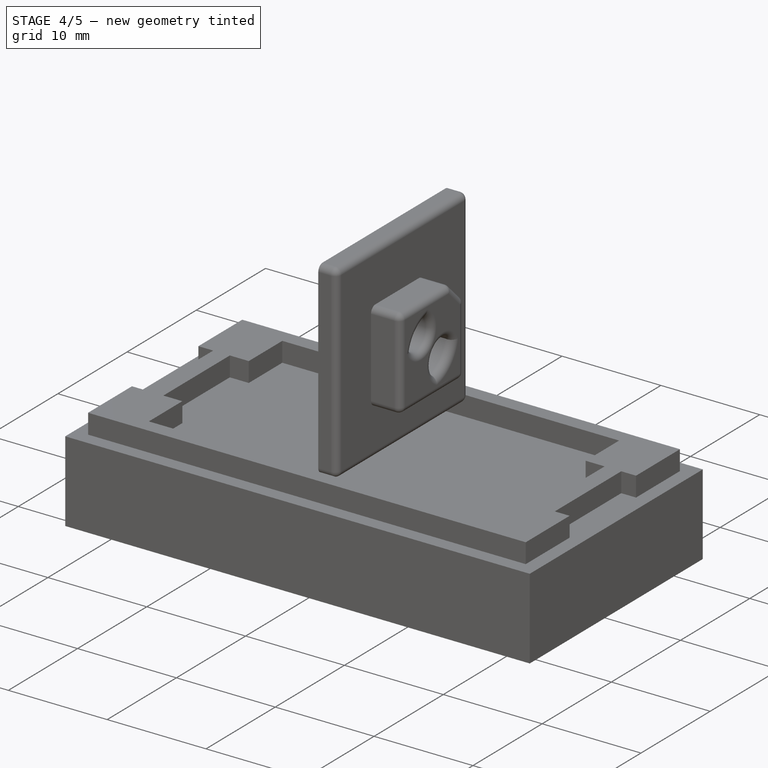
[diagram: stage 4 of 5 — iso view after this stage's code; geometry added in this stage tinted green]
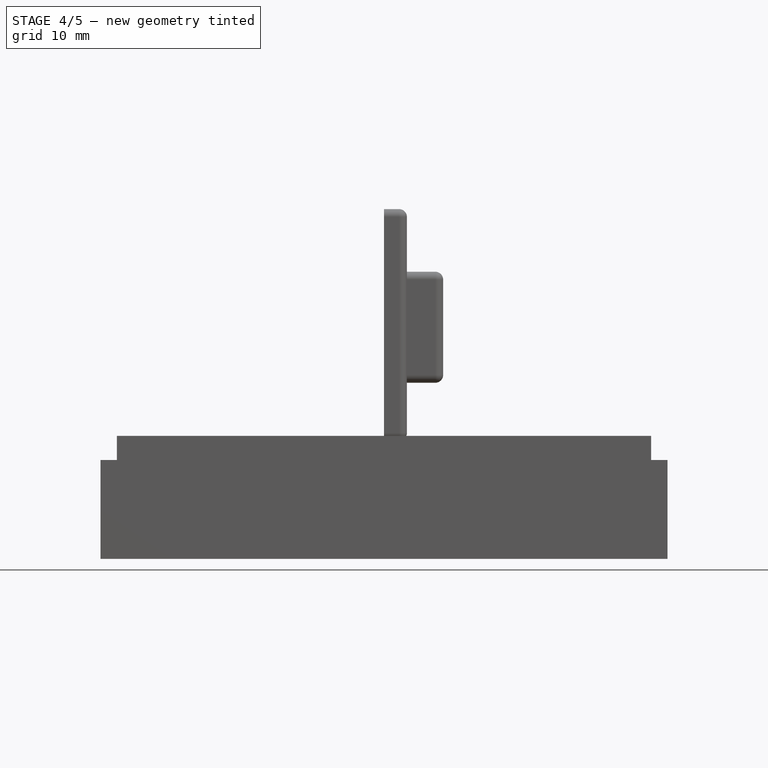
[diagram: stage 4 of 5 — front view after this stage's code; geometry added in this stage tinted green]
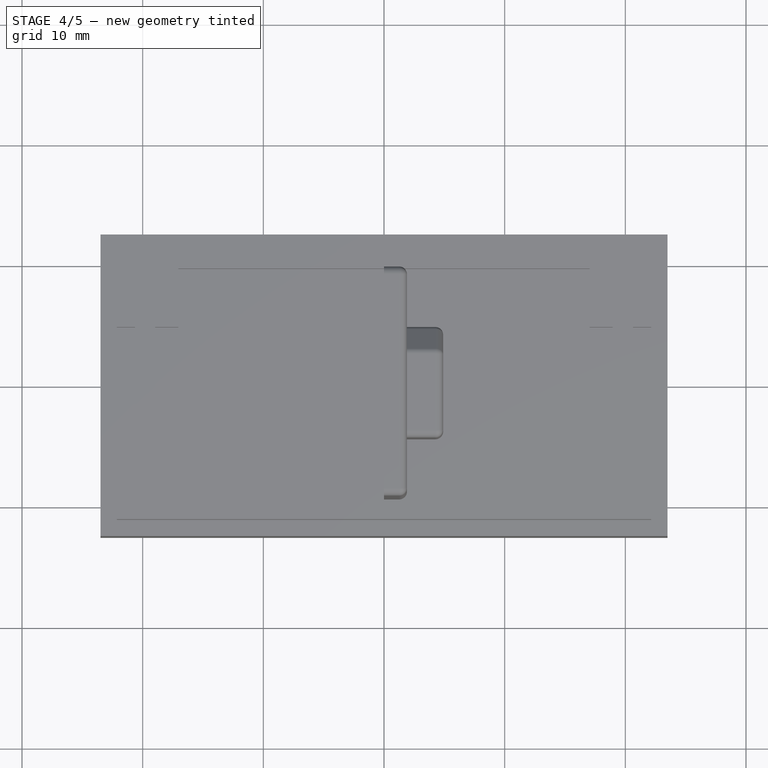
[diagram: stage 4 of 5 — top view after this stage's code; geometry added in this stage tinted green]
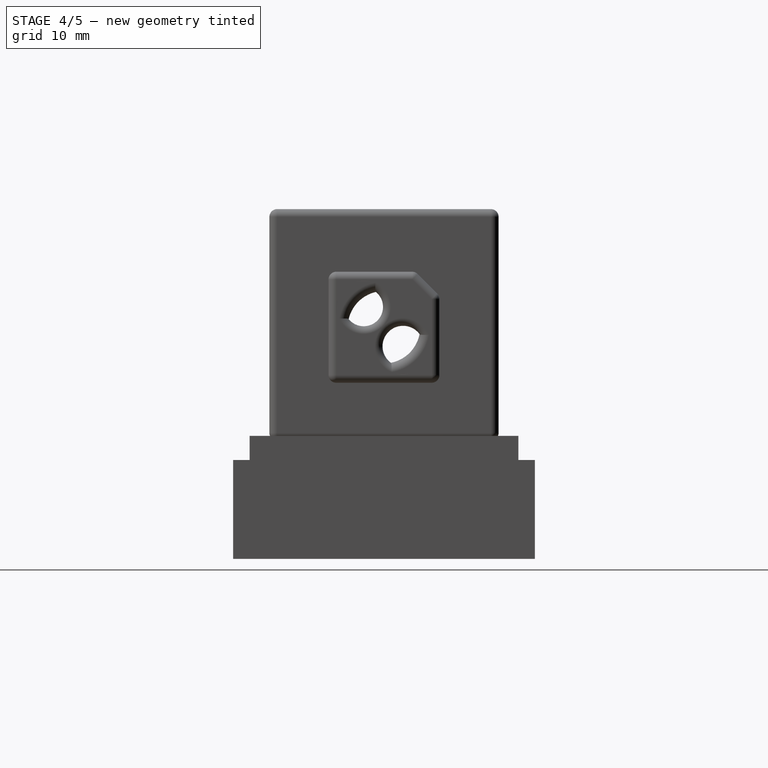
[diagram: stage 4 of 5 — right view after this stage's code; geometry added in this stage tinted green]
FEATURE [Sketcher::SketchObject] Sketch005
  AttachmentOffset = pos=(0,0,-1.2) rot=(0,0,1;0rad)
  ExternalGeometry = -> [Sketch004,ShapeBinder001]
  MapMode = 5
  Placement = pos=(0,0,-1.2) rot=(0,0,1;0rad)
  Support = -> [XY_Plane001]
  expr: AttachmentOffset.Base.z = Sketch004.AttachmentOffset.Base.z
  sketch-geometry (8):
    g0: LineSegment StartX=-18.8 StartY=4.64 StartZ=0 EndX=-17.2 EndY=4.64 EndZ=0
    g1: LineSegment StartX=-17.2 StartY=4.64 StartZ=0 EndX=-17.2 EndY=-4.64 EndZ=0
    g2: LineSegment StartX=-17.2 StartY=-4.64 StartZ=0 EndX=-18.8 EndY=-4.64 EndZ=0
    g3: LineSegment StartX=-18.8 StartY=-4.64 StartZ=0 EndX=-18.8 EndY=4.64 EndZ=0
    g4: LineSegment StartX=17.2 StartY=4.64 StartZ=0 EndX=18.8 EndY=4.64 EndZ=0
    g5: LineSegment StartX=18.8 StartY=4.64 StartZ=0 EndX=18.8 EndY=-4.64 EndZ=0
    g6: LineSegment StartX=18.8 StartY=-4.64 StartZ=0 EndX=17.2 EndY=-4.64 EndZ=0
    g7: LineSegment StartX=17.2 StartY=-4.64 StartZ=0 EndX=17.2 EndY=4.64 EndZ=0
  constraints (24):
    c: Coincident(g0,g1)
    c: Coincident(g1,g2)
    c: Coincident(g2,g3)
    c: Coincident(g3,g0)
    c: Horizontal(g0)
    c: Horizontal(g2)
    c: Vertical(g1)
    c: Vertical(g3)
    c: Coincident(g4,g5)
    c: Coincident(g5,g6)
    c: Coincident(g6,g7)
    c: Coincident(g7,g4)
    c: Horizontal(g4)
    c: Horizontal(g6)
    c: Vertical(g5)
    c: Vertical(g7)
    c: PointOnObject(g2,g-5)
    c: PointOnObject(g6,g-5)
    c: PointOnObject(g4,g-3)
    c: PointOnObject(g0,g-3)
    c: PointOnObject(g-4,g3)
    c: PointOnObject(g-4,g1)
    c: PointOnObject(g-7,g7)
    c: PointOnObject(g-7,g5)
FEATURE [PartDesign::Pad] Pad004
  BaseFeature = -> Pad003
  Length = 7
  Length2 = 100
  Profile = -> Sketch005
  Reversed = true
  Type = 0
  expr: Length = Pad003.Length
FEATURE [Sketcher::SketchObject] Sketch006
  AttachmentOffset = pos=(0,0,-8.2) rot=(0,0,1;0rad)
  ExternalGeometry = -> [Sketch004,ShapeBinder]
  MapMode = 5
  Placement = pos=(0,0,-8.2) rot=(0,0,1;0rad)
  Support = -> [XY_Plane001]
  expr: Constraints[33] = Spreadsheet.TightTolerance
  expr: AttachmentOffset.Base.z = Sketch004.AttachmentOffset.Base.z - Pad003.Length
  sketch-geometry (12):
    g0: LineSegment StartX=-22.3 StartY=11.3 StartZ=0 EndX=22.3 EndY=11.3 EndZ=0
    g1: LineSegment StartX=22.3 StartY=11.3 StartZ=0 EndX=22.3 EndY=-11.3 EndZ=0
    g2: LineSegment StartX=22.3 StartY=-11.3 StartZ=0 EndX=-22.3 EndY=-11.3 EndZ=0
    g3: LineSegment StartX=-22.3 StartY=-11.3 StartZ=0 EndX=-22.3 EndY=11.3 EndZ=0
    g4: LineSegment StartX=-22.06 StartY=11.06 StartZ=0 EndX=22.06 EndY=11.06 EndZ=0
    g5: LineSegment StartX=22.06 StartY=11.06 StartZ=0 EndX=22.06 EndY=-11.06 EndZ=0
    g6: LineSegment StartX=22.06 StartY=-11.06 StartZ=0 EndX=-22.06 EndY=-11.06 EndZ=0
    g7: LineSegment StartX=-22.06 StartY=-11.06 StartZ=0 EndX=-22.06 EndY=11.06 EndZ=0
    g8: LineSegment [constr] StartX=22 StartY=-11.06 StartZ=0 EndX=22 EndY=-11 EndZ=0
    g9: LineSegment [constr] StartX=22 StartY=-11 StartZ=0 EndX=22.06 EndY=-11 EndZ=0
    g10: LineSegment [constr] StartX=-22.06 StartY=11 StartZ=0 EndX=-22 EndY=11 EndZ=0
    g11: LineSegment [constr] StartX=-22 StartY=11 StartZ=0 EndX=-22 EndY=11.06 EndZ=0
  constraints (35):
    c: Coincident(g0,g1)
    c: Coincident(g1,g2)
    c: Coincident(g2,g3)
    c: Coincident(g3,g0)
    c: Horizontal(g0)
    c: Horizontal(g2)
    c: Vertical(g1)
    c: Vertical(g3)
    c: Coincident(g0,g-3)
    c: Coincident(g1,g-4)
    c: Coincident(g4,g5)
    c: Coincident(g5,g6)
    c: Coincident(g6,g7)
    c: Coincident(g7,g4)
    c: Horizontal(g4)
    c: Horizontal(g6)
    c: Vertical(g5)
    c: Vertical(g7)
    c: PointOnObject(g8,g6)
    c: Coincident(g8,g-8)
    c: Vertical(g8)
    c: Coincident(g8,g9)
    c: PointOnObject(g9,g5)
    c: Horizontal(g9)
    c: PointOnObject(g10,g7)
    c: Coincident(g10,g-7)
    c: Horizontal(g10)
    c: Coincident(g10,g11)
    c: PointOnObject(g11,g4)
    c: Vertical(g11)
    c: Equal(g8,g9)
    c: Equal(g9,g10)
    c: Equal(g10,g11)
    c: DistanceY(g10,g4) = 0.06
    c: DistanceY(g4,g0) = 0.24  'Ridge'
FEATURE [PartDesign::Pad] Pad005
  BaseFeature = -> Pad004
  Length = 0.5
  Length2 = 100
  Profile = -> Sketch006
  Refine = true
  Type = 0
FEATURE [PartDesign::Fillet] Fillet
  Base = -> Pad005 [Edge24,Edge23,Edge22,Edge21,Edge20,Edge19,Edge18,Edge13,Edge14,Edge15,Edge16,Edge17,Edge60,Edge49,Edge52,Edge35,Face37,Face36,Edge89,Edge90,Edge94,Edge92,Edge86,Edge84,Edge82,Edge81]
  BaseFeature = -> Pad005
  Radius = 0.3
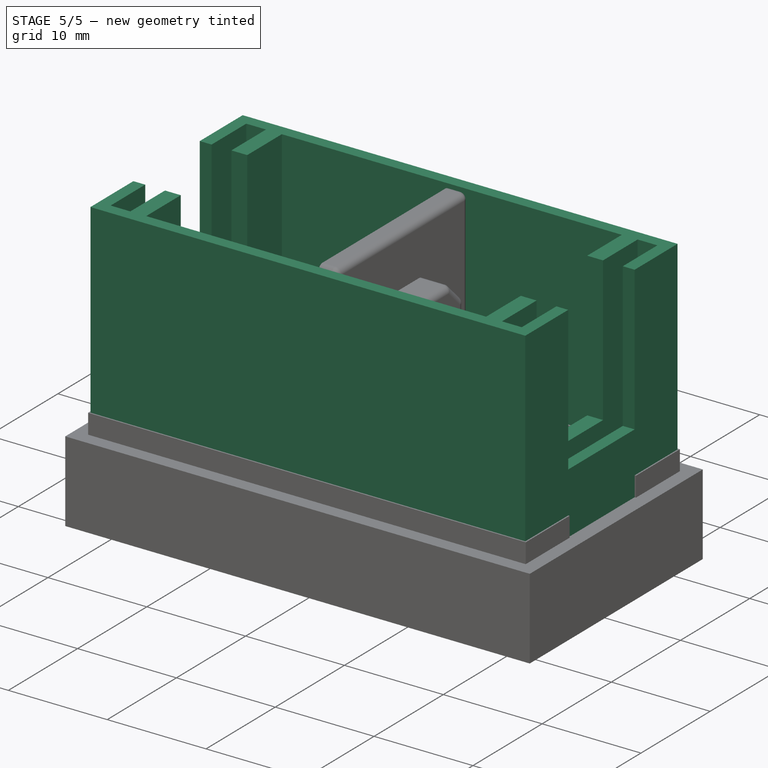
[diagram: stage 5 of 5 — iso view after this stage's code; geometry added in this stage tinted green]
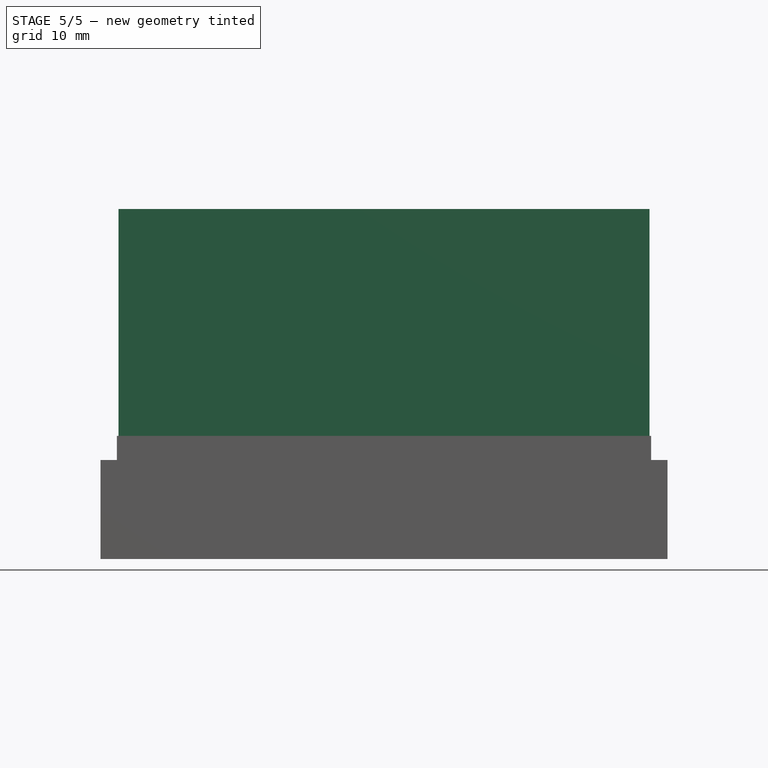
[diagram: stage 5 of 5 — front view after this stage's code; geometry added in this stage tinted green]
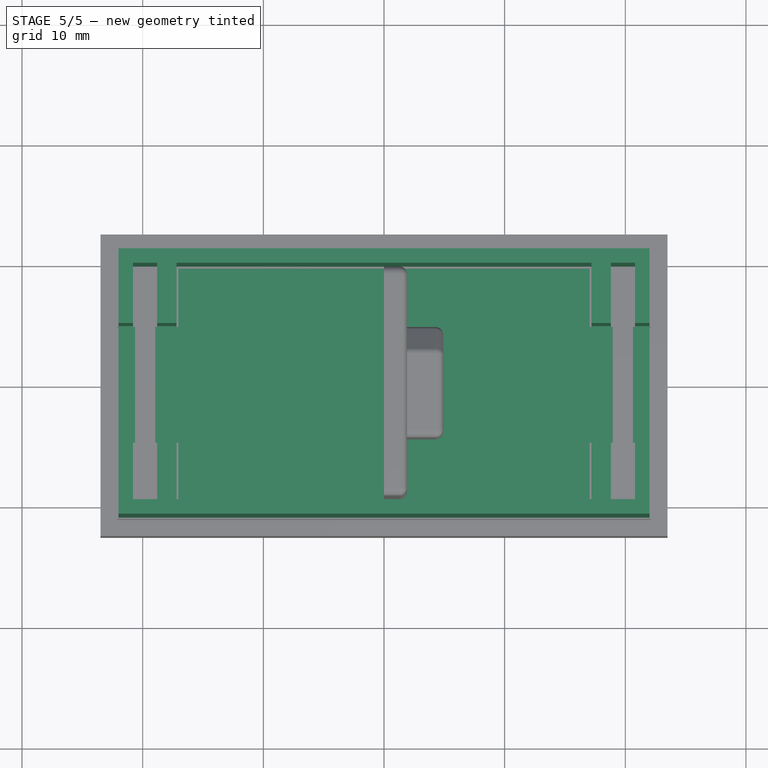
[diagram: stage 5 of 5 — top view after this stage's code; geometry added in this stage tinted green]
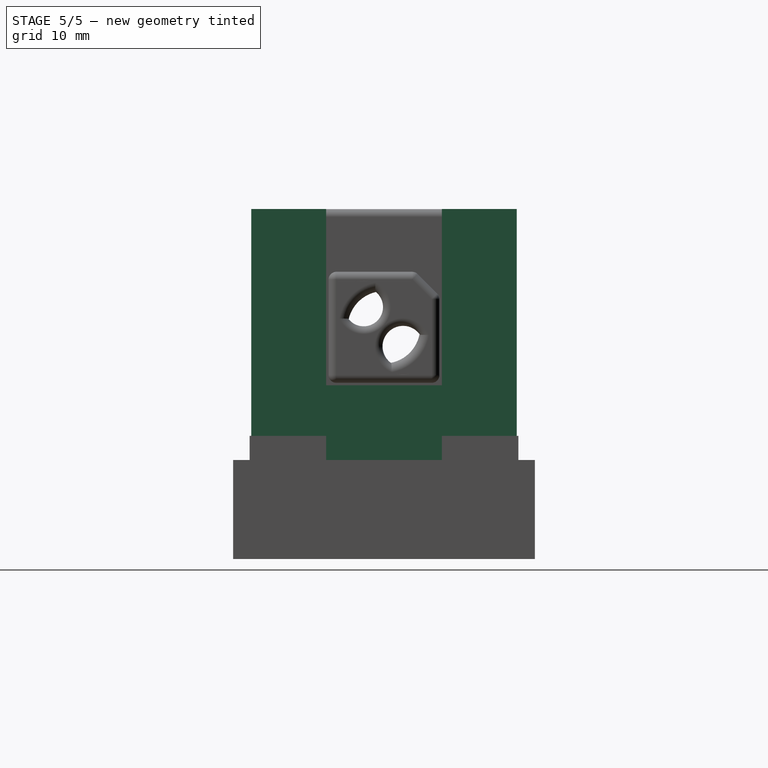
[diagram: stage 5 of 5 — right view after this stage's code; geometry added in this stage tinted green]
FEATURE [Sketcher::SketchObject] Sketch  label="Base.Base"
  MapMode = 5
  Support = -> [XY_Plane]
  expr: Constraints[8] = Spreadsheet.Length
  expr: Constraints[9] = Spreadsheet.Width
  sketch-geometry (4):
    g0: LineSegment StartX=-22 StartY=11 StartZ=0 EndX=22 EndY=11 EndZ=0
    g1: LineSegment StartX=22 StartY=11 StartZ=0 EndX=22 EndY=-11 EndZ=0
    g2: LineSegment StartX=22 StartY=-11 StartZ=0 EndX=-22 EndY=-11 EndZ=0
    g3: LineSegment StartX=-22 StartY=-11 StartZ=0 EndX=-22 EndY=11 EndZ=0
  constraints (11):
    c: Coincident(g0,g1)
    c: Coincident(g1,g2)
    c: Coincident(g2,g3)
    c: Coincident(g3,g0)
    c: Horizontal(g0)
    c: Horizontal(g2)
    c: Vertical(g1)
    c: Vertical(g3)
    c: DistanceX(g0,g0) = 44
    c: DistanceY(g3,g3) = 22
    c: Symmetric(g2,g0,g-1)
FEATURE [PartDesign::Pad] Pad  label="Base.Base_"
  Length = 20.8
  Length2 = 100
  Profile = -> Sketch
  Type = 0
  expr: Length = Spreadsheet.BaseThickness + Spreadsheet.WallHeight
FEATURE [Sketcher::SketchObject] Sketch001  label="Base.Cavity"
  AttachmentOffset = pos=(0,0,1.2) rot=(0,0,1;0rad)
  ExternalGeometry = -> [Sketch]
  MapMode = 5
  Placement = pos=(0,0,1.2) rot=(0,0,1;0rad)
  Support = -> [XY_Plane]
  expr: Constraints[34] = Spreadsheet.IsolationOverlap
  expr: Constraints[52] = Spreadsheet.IsolationThickness
  expr: AttachmentOffset.Base.z = Constraints.WallThickness
  expr: Constraints[53] = Spreadsheet.InnerWallThickness
  expr: Constraints.WallThickness = Spreadsheet.WallThickness
  sketch-geometry (32):
    g0: LineSegment StartX=-20.8 StartY=9.8 StartZ=0 EndX=-18.8 EndY=9.8 EndZ=0
    g1: LineSegment StartX=20.8 StartY=9.8 StartZ=0 EndX=20.8 EndY=4.8 EndZ=0
    g2: LineSegment StartX=20.8 StartY=-9.8 StartZ=0 EndX=18.8 EndY=-9.8 EndZ=0
    g3: LineSegment StartX=-20.8 StartY=-9.8 StartZ=0 EndX=-20.8 EndY=-4.8 EndZ=0
    g4: LineSegment [constr] StartX=-20.8 StartY=9.8 StartZ=0 EndX=-22 EndY=9.8 EndZ=0
    g5: LineSegment [constr] StartX=-20.8 StartY=9.8 StartZ=0 EndX=-20.8 EndY=11 EndZ=0
    g6: LineSegment [constr] StartX=20.8 StartY=-9.8 StartZ=0 EndX=22 EndY=-9.8 EndZ=0
    g7: LineSegment [constr] StartX=20.8 StartY=-9.8 StartZ=0 EndX=20.8 EndY=-11 EndZ=0
    g8: LineSegment StartX=-20.8 StartY=4.8 StartZ=0 EndX=-22 EndY=4.8 EndZ=0
    g9: LineSegment StartX=-20.8 StartY=-4.8 StartZ=0 EndX=-22 EndY=-4.8 EndZ=0
    g10: LineSegment StartX=-22 StartY=4.8 StartZ=0 EndX=-22 EndY=-4.8 EndZ=0
    g11: LineSegment StartX=-20.8 StartY=4.8 StartZ=0 EndX=-20.8 EndY=9.8 EndZ=0
    g12: LineSegment StartX=-18.8 StartY=9.8 StartZ=0 EndX=-18.8 EndY=4.8 EndZ=0
    g13: LineSegment StartX=-18.8 StartY=-4.8 StartZ=0 EndX=-18.8 EndY=-9.8 EndZ=0
    g14: LineSegment StartX=-18.8 StartY=4.8 StartZ=0 EndX=-17.2 EndY=4.8 EndZ=0
    g15: LineSegment StartX=-17.2 StartY=4.8 StartZ=0 EndX=-17.2 EndY=9.8 EndZ=0
    g16: LineSegment StartX=-18.8 StartY=-4.8 StartZ=0 EndX=-17.2 EndY=-4.8 EndZ=0
    g17: LineSegment StartX=-17.2 StartY=-4.8 StartZ=0 EndX=-17.2 EndY=-9.8 EndZ=0
    g18: LineSegment StartX=-17.2 StartY=9.8 StartZ=0 EndX=17.2 EndY=9.8 EndZ=0
    g19: LineSegment StartX=-18.8 StartY=-9.8 StartZ=0 EndX=-20.8 EndY=-9.8 EndZ=0
    g20: LineSegment StartX=20.8 StartY=4.8 StartZ=0 EndX=22 EndY=4.8 EndZ=0
    g21: LineSegment StartX=22 StartY=4.8 StartZ=0 EndX=22 EndY=-4.8 EndZ=0
    g22: LineSegment StartX=22 StartY=-4.8 StartZ=0 EndX=20.8 EndY=-4.8 EndZ=0
    g23: LineSegment StartX=20.8 StartY=-4.8 StartZ=0 EndX=20.8 EndY=-9.8 EndZ=0
    g24: LineSegment StartX=18.8 StartY=9.8 StartZ=0 EndX=18.8 EndY=4.8 EndZ=0
    g25: LineSegment StartX=17.2 StartY=9.8 StartZ=0 EndX=17.2 EndY=4.8 EndZ=0
    g26: LineSegment StartX=18.8 StartY=4.8 StartZ=0 EndX=17.2 EndY=4.8 EndZ=0
    g27: LineSegment StartX=18.8 StartY=-4.8 StartZ=0 EndX=17.2 EndY=-4.8 EndZ=0
    g28: LineSegment StartX=18.8 StartY=9.8 StartZ=0 EndX=20.8 EndY=9.8 EndZ=0
    g29: LineSegment StartX=17.2 StartY=-4.8 StartZ=0 EndX=17.2 EndY=-9.8 EndZ=0
    g30: LineSegment StartX=18.8 StartY=-4.8 StartZ=0 EndX=18.8 EndY=-9.8 EndZ=0
    g31: LineSegment StartX=17.2 StartY=-9.8 StartZ=0 EndX=-17.2 EndY=-9.8 EndZ=0
  constraints (89):
    c: Coincident(g28,g1)
    c: Coincident(g23,g2)
    c: Coincident(g19,g3)
    c: Coincident(g11,g0)
    c: Horizontal(g0)
    c: Horizontal(g2)
    c: Vertical(g1)
    c: Vertical(g3)
    c: Coincident(g4,g0)
    c: PointOnObject(g4,g-4)
    c: Horizontal(g4)
    c: Coincident(g5,g0)
    c: PointOnObject(g5,g-3)
    c: Vertical(g5)
    c: Coincident(g6,g23)
    c: PointOnObject(g6,g-6)
    c: Horizontal(g6)
    c: Coincident(g7,g23)
    c: PointOnObject(g7,g-5)
    c: Vertical(g7)
    c: Equal(g4,g5)
    c: Equal(g5,g6)
    c: Equal(g6,g7)
    c: PointOnObject(g8,g-4)
    c: Horizontal(g8)
    c: PointOnObject(g9,g-4)
    c: Horizontal(g9)
    c: Coincident(g10,g8)
    c: Coincident(g10,g9)
    c: Coincident(g3,g9)
    c: Coincident(g11,g8)
    c: Tangent(g3,g11)
    c: Equal(g11,g3)
    c: DistanceY(g4,g-4) = 1.2  'WallThickness'
    c: DistanceY(g8,g4) = 5
    c: Vertical(g12)
    c: Tangent(g12,g13)
    c: Coincident(g14,g12)
    c: Horizontal(g14)
    c: Coincident(g15,g14)
    c: Vertical(g15)
    c: Coincident(g16,g13)
    c: Coincident(g17,g16)
    c: Vertical(g17)
    c: Horizontal(g16)
    c: Equal(g14,g16)
    c: Coincident(g0,g12)
    c: Coincident(g18,g15)
    c: Tangent(g0,g18)
    c: Coincident(g31,g17)
    c: Coincident(g19,g13)
    c: Tangent(g2,g19)
    c: DistanceX(g5,g0) = 2
    c: DistanceX(g0,g15) = 1.6
    c: PointOnObject(g20,g-6)
    c: Horizontal(g20)
    c: Coincident(g20,g21)
    c: PointOnObject(g21,g-6)
    c: Coincident(g21,g22)
    c: Horizontal(g22)
    c: Coincident(g1,g20)
    c: Coincident(g23,g22)
    c: Tangent(g1,g23)
    c: Equal(g1,g23)
    c: Equal(g23,g17)
    c: PointOnObject(g12,g8)
    c: PointOnObject(g13,g9)
    c: Horizontal(g26)
    c: Horizontal(g27)
    c: Coincident(g18,g25)
    c: Coincident(g28,g24)
    c: Tangent(g18,g28)
    c: Coincident(g25,g26)
    c: Coincident(g29,g27)
    c: Tangent(g25,g29)
    c: Coincident(g24,g26)
    c: Coincident(g30,g27)
    c: Tangent(g24,g30)
    c: Coincident(g2,g30)
    c: Coincident(g31,g29)
    c: Tangent(g2,g31)
    c: Equal(g28,g2)
    c: Equal(g2,g19)
    c: Equal(g27,g26)
    c: Equal(g26,g16)
    c: PointOnObject(g24,g20)
    c: PointOnObject(g27,g22)
    c: DistanceY(g10,g10) = 9.6  'OpeningWidth'
    c: DistanceY(g3,g4) = 19.6  'InnerWidth'
FEATURE [PartDesign::Pocket] Pocket  label="Base.Cavity_"
  BaseFeature = -> Pad
  Length = 5
  Length2 = 100
  Profile = -> Sketch001
  Reversed = true
  Type = 1
FEATURE [Sketcher::SketchObject] Sketch002  label="Base.BottomOverlap"
  AttachmentOffset = pos=(0,0,1.2) rot=(0,0,1;0rad)
  ExternalGeometry = -> [Sketch001]
  MapMode = 5
  Placement = pos=(0,0,1.2) rot=(0,0,1;0rad)
  Support = -> [XY_Plane]
  expr: AttachmentOffset.Base.z = <<Base.Cavity>>.AttachmentOffset.Base.z
  sketch-geometry (16):
    g0: LineSegment StartX=-22 StartY=4.8 StartZ=0 EndX=-22 EndY=-4.8 EndZ=0
    g1: LineSegment StartX=-22 StartY=-4.8 StartZ=0 EndX=-20.8 EndY=-4.8 EndZ=0
    g2: LineSegment StartX=-20.8 StartY=-4.8 StartZ=0 EndX=-20.8 EndY=4.8 EndZ=0
    g3: LineSegment StartX=-20.8 StartY=4.8 StartZ=0 EndX=-22 EndY=4.8 EndZ=0
    g4: LineSegment StartX=-18.8 StartY=4.8 StartZ=0 EndX=-18.8 EndY=-4.8 EndZ=0
    g5: LineSegment StartX=-18.8 StartY=-4.8 StartZ=0 EndX=-17.2 EndY=-4.8 EndZ=0
    g6: LineSegment StartX=-17.2 StartY=-4.8 StartZ=0 EndX=-17.2 EndY=4.8 EndZ=0
    g7: LineSegment StartX=-17.2 StartY=4.8 StartZ=0 EndX=-18.8 EndY=4.8 EndZ=0
    g8: LineSegment StartX=17.2 StartY=4.8 StartZ=0 EndX=17.2 EndY=-4.8 EndZ=0
    g9: LineSegment StartX=17.2 StartY=-4.8 StartZ=0 EndX=18.8 EndY=-4.8 EndZ=0
    g10: LineSegment StartX=18.8 StartY=-4.8 StartZ=0 EndX=18.8 EndY=4.8 EndZ=0
    g11: LineSegment StartX=18.8 StartY=4.8 StartZ=0 EndX=17.2 EndY=4.8 EndZ=0
    g12: LineSegment StartX=20.8 StartY=4.8 StartZ=0 EndX=20.8 EndY=-4.8 EndZ=0
    g13: LineSegment StartX=20.8 StartY=-4.8 StartZ=0 EndX=22 EndY=-4.8 EndZ=0
    g14: LineSegment StartX=22 StartY=-4.8 StartZ=0 EndX=22 EndY=4.8 EndZ=0
    g15: LineSegment StartX=22 StartY=4.8 StartZ=0 EndX=20.8 EndY=4.8 EndZ=0
  constraints (32):
    c: Coincident(g-3,g0)
    c: Coincident(g0,g-4)
    c: Coincident(g0,g1)
    c: Coincident(g1,g-4)
    c: Coincident(g1,g2)
    c: Coincident(g2,g-3)
    c: Coincident(g2,g3)
    c: Coincident(g3,g0)
    c: Coincident(g-6,g4)
    c: Coincident(g4,g-5)
    c: Coincident(g4,g5)
    c: Coincident(g5,g-5)
    c: Coincident(g5,g6)
    c: Coincident(g6,g-6)
    c: Coincident(g6,g7)
    c: Coincident(g7,g4)
    c: Coincident(g-7,g8)
    c: Coincident(g8,g-10)
    c: Coincident(g8,g9)
    c: Coincident(g9,g-10)
    c: Coincident(g9,g10)
    c: Coincident(g10,g-7)
    c: Coincident(g10,g11)
    c: Coincident(g11,g8)
    c: Coincident(g-8,g12)
    c: Coincident(g12,g-9)
    c: Coincident(g12,g13)
    c: Coincident(g13,g-9)
    c: Coincident(g13,g14)
    c: Coincident(g14,g-8)
    c: Coincident(g14,g15)
    c: Coincident(g15,g12)
FEATURE [PartDesign::Pad] Pad001  label="Base.BottomOverlap_"
  BaseFeature = -> Pocket
  Length = 5
  Length2 = 100
  Profile = -> Sketch002
  Refine = true
  Type = 0
  expr: Length = Spreadsheet.IsolationOverlap
FEATURE [PartDesign::Chamfer] Chamfer
  Base = -> Fillet [Edge98,Edge99,Edge131,Edge130,Edge128,Edge97]
  BaseFeature = -> Fillet
  Size = 0.239
  expr: Size = Sketch006.Constraints.Ridge - 0.001mm
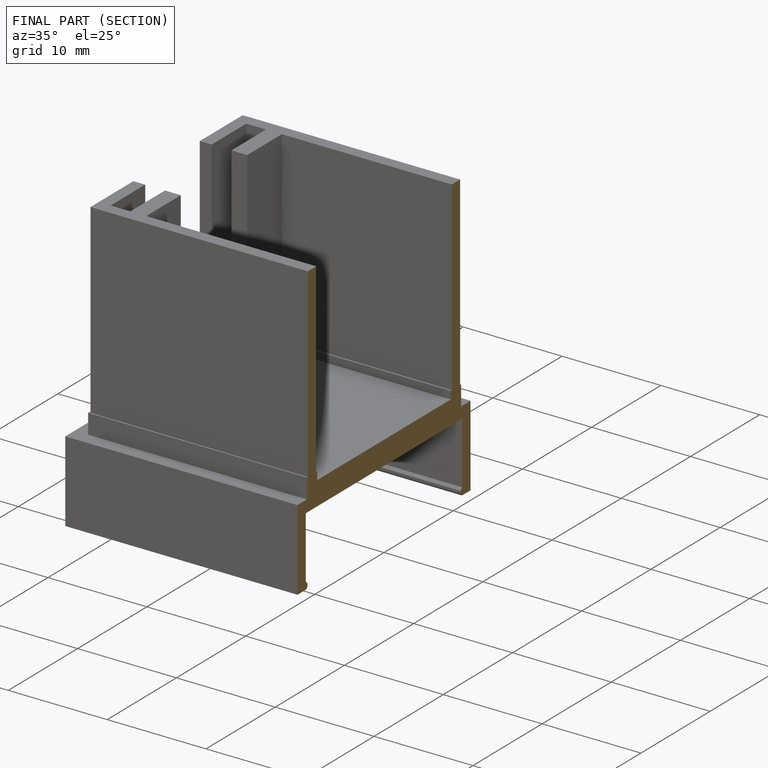
[diagram: finished part — half-section view (interior)]
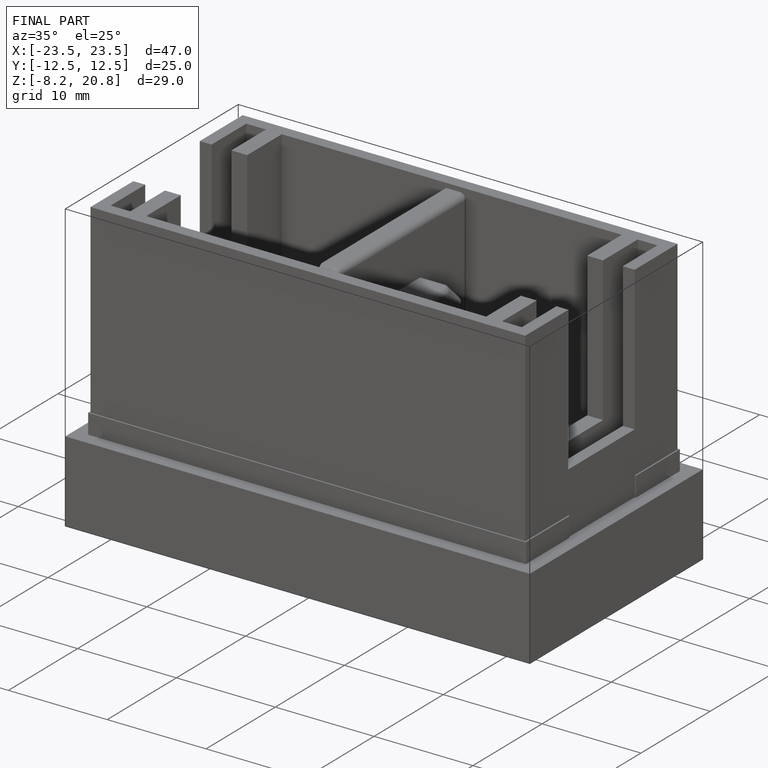
[diagram: finished part — iso view with bounding-box wireframe]
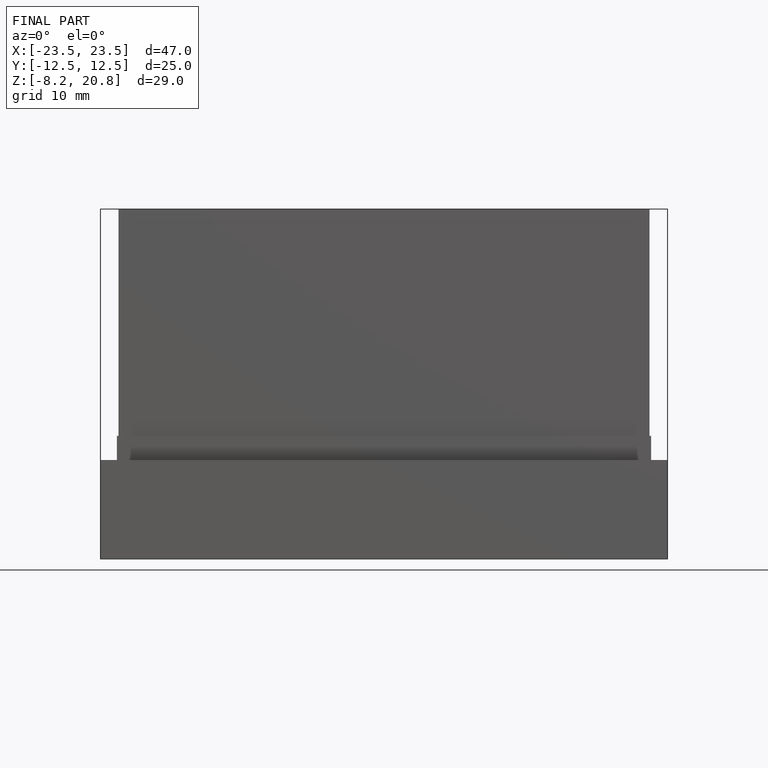
[diagram: finished part — front view with bounding-box wireframe]
